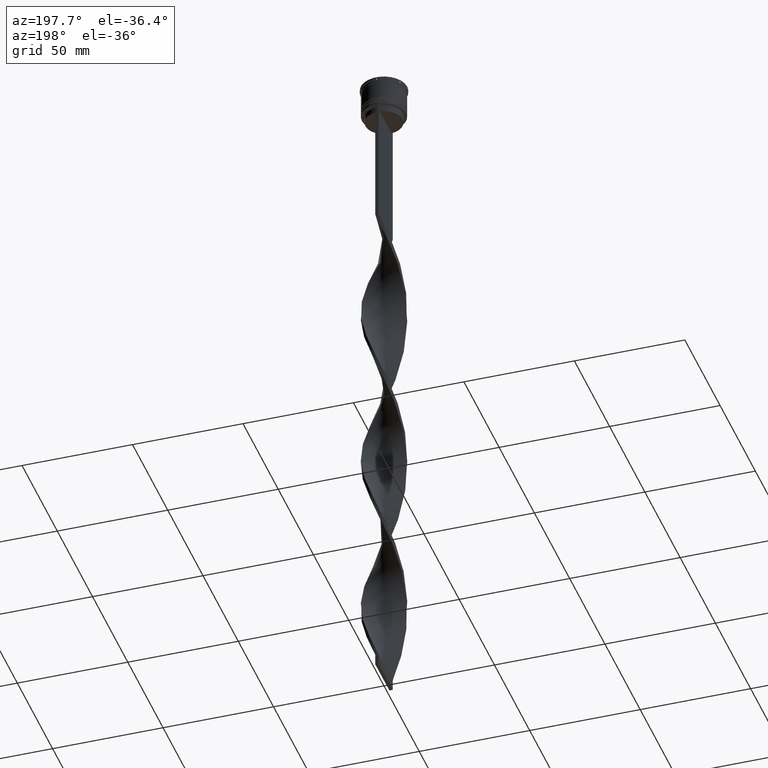
[diagram: clean part render]
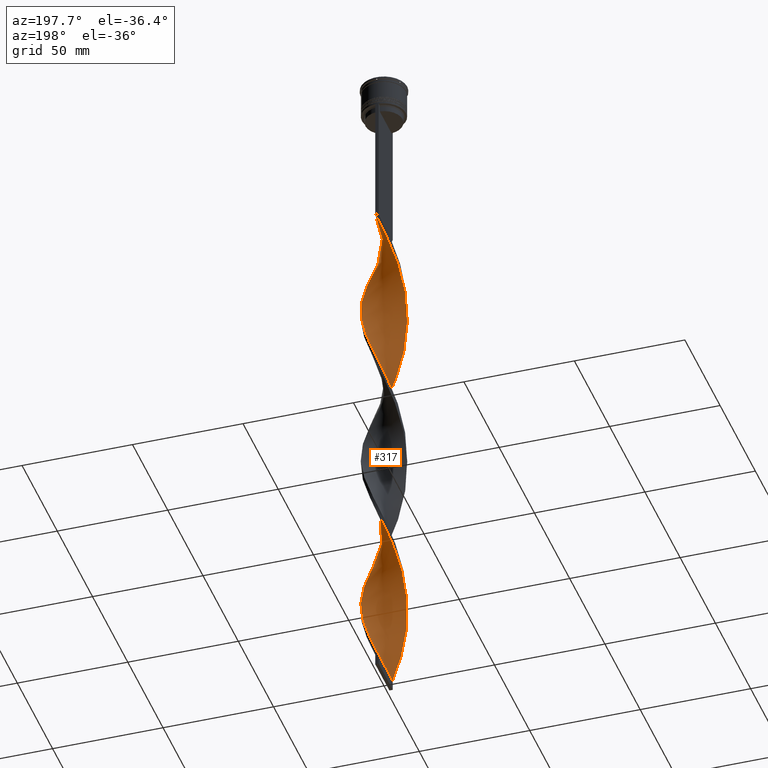
[diagram: same view with one face highlighted and labeled with its STEP entity id]
A machine part, auxiliary view. The second image highlights one B-rep face of the part: STEP entity #317.
In plain terms, the highlighted face is a freeform B-spline surface patch.
Its self-contained STEP definition (entity closure, byte-faithful):
#2 = CARTESIAN_POINT ( 'NONE',  ( -7.086630674828937160, -7.138980714781979486, -291.3000000000000682 ) ) ;
#17 = CARTESIAN_POINT ( 'NONE',  ( 9.940973719881544213, 1.537017068246184337, -114.3000000000000398 ) ) ;
#41 = CARTESIAN_POINT ( 'NONE',  ( 8.569572367079022257, 5.208159890536745884, -124.1333333333333400 ) ) ;
#55 = EDGE_CURVE ( 'NONE', #3794, #1685, #1115, .T. ) ;
#62 = CARTESIAN_POINT ( 'NONE',  ( -9.999999999999998224, 0.7500000000000007772, -269.6666666666666856 ) ) ;
#74 = CARTESIAN_POINT ( 'NONE',  ( 9.555263588120860518, -3.143615391390494285, -102.5000000000000142 ) ) ;
#83 = CARTESIAN_POINT ( 'NONE',  ( -0.03701706824619165753, -10.05902628011847000, -228.3666666666666458 ) ) ;
#97 = CARTESIAN_POINT ( 'NONE',  ( -10.00000000000000533, -0.7499999999999983347, -191.0000000000000000 ) ) ;
#113 = CARTESIAN_POINT ( 'NONE',  ( -9.759557557171204323, 2.305110905848662739, -108.3999999999999915 ) ) ;
#120 = CARTESIAN_POINT ( 'NONE',  ( -3.143615391390492064, 9.555263588120853413, -82.83333333333335702 ) ) ;
#122 = CARTESIAN_POINT ( 'NONE',  ( -9.940973719881544213, -1.537017068246187668, -192.9666666666666970 ) ) ;
#132 = CARTESIAN_POINT ( 'NONE',  ( -9.999999999999998224, 0.7500000000000007772, -112.3333333333333428 ) ) ;
#140 = CARTESIAN_POINT ( 'NONE',  ( 5.942494737169154106, 8.116165120681841927, -133.9666666666666686 ) ) ;
#150 = CARTESIAN_POINT ( 'NONE',  ( -4.599684817117892344, 8.945852645255820690, -86.76666666666666572 ) ) ;
#155 = CARTESIAN_POINT ( 'NONE',  ( -9.929392229344635723, -1.610139721665724943, -118.2333333333333485 ) ) ;
#157 = CARTESIAN_POINT ( 'NONE',  ( 7.649331004530123934, 6.484615268705943514, -128.0666666666666629 ) ) ;
#161 = CARTESIAN_POINT ( 'NONE',  ( -3.803462330970839744, 9.278802417170330941, -159.5333333333333314 ) ) ;
#183 = CARTESIAN_POINT ( 'NONE',  ( -7.086630674828936272, -7.138980714781978598, -133.9666666666666686 ) ) ;
#186 = CARTESIAN_POINT ( 'NONE',  ( -0.7499999999999988898, 10.00000000000000533, -309.0000000000000000 ) ) ;
#189 = CARTESIAN_POINT ( 'NONE',  ( -7.649331004530125711, -6.484615268705942626, -206.7333333333333201 ) ) ;
#201 = CARTESIAN_POINT ( 'NONE',  ( 0.8235783949559537520, -9.994209254731549308, -155.6000000000000227 ) ) ;
#208 = CARTESIAN_POINT ( 'NONE',  ( 6.540737725975562356, -7.601397897755385991, -171.3333333333333428 ) ) ;
#210 = CARTESIAN_POINT ( 'NONE',  ( 9.278802417170330941, 3.803462330970840632, -277.5333333333333030 ) ) ;
#213 = CARTESIAN_POINT ( 'NONE',  ( 0.8235783949559573047, 9.994209254731554637, -147.7333333333333201 ) ) ;
#224 = CARTESIAN_POINT ( 'NONE',  ( 5.882599862582947203, 8.159681294278261277, -216.5666666666666629 ) ) ;
#229 = CARTESIAN_POINT ( 'NONE',  ( 8.979463439879776132, -4.533719918490545453, -181.1666666666666856 ) ) ;
#234 = CARTESIAN_POINT ( 'NONE',  ( -7.601397897755389543, 6.540737725975570349, -171.3333333333333428 ) ) ;
#244 = CARTESIAN_POINT ( 'NONE',  ( 4.599684817117890567, -8.945852645255820690, -165.4333333333333655 ) ) ;
#253 = CARTESIAN_POINT ( 'NONE',  ( 5.208159890536744996, 8.569572367079015152, -218.5333333333333314 ) ) ;
#254 = CARTESIAN_POINT ( 'NONE',  ( 6.540737725975569461, 7.601397897755389543, -289.3333333333333144 ) ) ;
#270 = CARTESIAN_POINT ( 'NONE',  ( -9.742327908732745456, -2.376877556528107949, -120.2000000000000028 ) ) ;
#275 = CARTESIAN_POINT ( 'NONE',  ( 0.03701706824618287983, -10.05902628011846112, -153.6333333333333826 ) ) ;
#280 = CARTESIAN_POINT ( 'NONE',  ( 3.143615391390495173, 9.555263588120860518, -299.1666666666666856 ) ) ;
#291 = CARTESIAN_POINT ( 'NONE',  ( -8.116165120681838374, -5.942494737169147889, -130.0333333333333314 ) ) ;
#298 = CARTESIAN_POINT ( 'NONE',  ( -3.871650104254190428, 9.250558116688338828, -242.1333333333333258 ) ) ;
#305 = CARTESIAN_POINT ( 'NONE',  ( 0.7500000000000001110, -10.00000000000000533, -73.00000000000001421 ) ) ;
#313 = CARTESIAN_POINT ( 'NONE',  ( -5.271089777143520116, 8.531008882968830420, -246.0666666666666629 ) ) ;
#317 = ADVANCED_FACE ( 'NONE', ( #3797 ), #3804, .T. ) ;
#335 = CARTESIAN_POINT ( 'NONE',  ( -6.540737725975564132, 7.601397897755385102, -250.0000000000000000 ) ) ;
#338 = CARTESIAN_POINT ( 'NONE',  ( -3.803462330970839744, -9.278802417170323835, -301.1333333333333258 ) ) ;
#348 = CARTESIAN_POINT ( 'NONE',  ( 7.086630674828940712, -7.138980714781985704, -90.70000000000001705 ) ) ;
#364 = CARTESIAN_POINT ( 'NONE',  ( 8.531008882968833973, -5.271089777143523669, -96.60000000000000853 ) ) ;
#390 = CARTESIAN_POINT ( 'NONE',  ( -9.759557557171204323, 2.305110905848662739, -265.7333333333333485 ) ) ;
#403 = CARTESIAN_POINT ( 'NONE',  ( -5.882599862582949868, 8.159681294278264829, -165.4333333333333371 ) ) ;
#412 = CARTESIAN_POINT ( 'NONE',  ( -8.159681294278266606, -5.882599862582948091, -204.7666666666666799 ) ) ;
#414 = LINE ( 'NONE', #3088, #3165 ) ;
#415 = EDGE_CURVE ( 'NONE', #1685, #491, #4250, .T. ) ;
#416 = CARTESIAN_POINT ( 'NONE',  ( -9.278802417170323835, 3.803462330970839300, -104.4666666666666828 ) ) ;
#425 = CARTESIAN_POINT ( 'NONE',  ( 8.159681294278264829, 5.882599862582951644, -126.1000000000000227 ) ) ;
#442 = CARTESIAN_POINT ( 'NONE',  ( -7.138980714781979486, 7.086630674828935383, -94.63333333333335418 ) ) ;
#444 = CARTESIAN_POINT ( 'NONE',  ( -10.05902628011847000, 0.03701706824619112324, -189.0333333333333314 ) ) ;
#465 = CARTESIAN_POINT ( 'NONE',  ( -6.484615268705941737, -7.649331004530116829, -135.9333333333333371 ) ) ;
#467 = CARTESIAN_POINT ( 'NONE',  ( -1.537017068246183671, 9.940973719881544213, -153.6333333333333826 ) ) ;
#482 = CARTESIAN_POINT ( 'NONE',  ( -3.803462330970839744, -9.278802417170323835, -143.7999999999999829 ) ) ;
#484 = CARTESIAN_POINT ( 'NONE',  ( -0.7499999999999988898, 10.00000000000000533, -151.6666666666666856 ) ) ;
#486 = CARTESIAN_POINT ( 'NONE',  ( 5.271089777143525446, 8.531008882968833973, -135.9333333333333371 ) ) ;
#491 = VERTEX_POINT ( 'NONE', #3217 ) ;
#498 = CARTESIAN_POINT ( 'NONE',  ( -0.8235783949559550843, 9.994209254731549308, -76.93333333333333712 ) ) ;
#507 = CARTESIAN_POINT ( 'NONE',  ( 1.537017068246185003, -9.940973719881544213, -232.3000000000000398 ) ) ;
#509 = CARTESIAN_POINT ( 'NONE',  ( 3.143615391390495173, 9.555263588120860518, -141.8333333333333144 ) ) ;
#512 = ORIENTED_EDGE ( 'NONE', *, *, #415, .F. ) ;
#522 = CARTESIAN_POINT ( 'NONE',  ( -1.537017068246185891, -9.940973719881535331, -149.7000000000000455 ) ) ;
#532 = CARTESIAN_POINT ( 'NONE',  ( 4.599684817117896785, 8.945852645255826019, -295.2333333333333485 ) ) ;
#536 = CARTESIAN_POINT ( 'NONE',  ( 8.116165120681840150, -5.942494737169153218, -251.9666666666666970 ) ) ;
#546 = CARTESIAN_POINT ( 'NONE',  ( 9.999999999999998224, -0.7500000000000019984, -191.0000000000000000 ) ) ;
#553 = CARTESIAN_POINT ( 'NONE',  ( 9.929392229344637499, 1.610139721665719614, -196.9000000000000057 ) ) ;
#555 = CARTESIAN_POINT ( 'NONE',  ( 7.601397897755390431, -6.540737725975569461, -250.0000000000000000 ) ) ;
#557 = CARTESIAN_POINT ( 'NONE',  ( 5.942494737169154106, 8.116165120681840150, -133.9666666666666686 ) ) ;
#568 = CARTESIAN_POINT ( 'NONE',  ( 7.649331004530116829, -6.484615268705941737, -175.2666666666666799 ) ) ;
#572 = CARTESIAN_POINT ( 'NONE',  ( 9.994209254731549308, 0.8235783949559529749, -194.9333333333333371 ) ) ;
#574 = CARTESIAN_POINT ( 'NONE',  ( 7.086630674828939824, -7.138980714781985704, -248.0333333333333599 ) ) ;
#576 = CARTESIAN_POINT ( 'NONE',  ( 5.942494737169154106, 8.116165120681840150, -291.3000000000000682 ) ) ;
#589 = CARTESIAN_POINT ( 'NONE',  ( -7.601397897755385102, -6.540737725975563244, -132.0000000000000000 ) ) ;
#596 = CARTESIAN_POINT ( 'NONE',  ( -9.999999999999998224, 0.7500000000000008882, -269.6666666666666856 ) ) ;
#598 = CARTESIAN_POINT ( 'NONE',  ( 5.942494737169154106, 8.116165120681841927, -291.3000000000000682 ) ) ;
#616 = CARTESIAN_POINT ( 'NONE',  ( -5.208159890536744996, -8.569572367079015152, -139.8666666666666742 ) ) ;
#622 = CARTESIAN_POINT ( 'NONE',  ( 8.116165120681836598, 5.942494737169151442, -208.7000000000000171 ) ) ;
#638 = CARTESIAN_POINT ( 'NONE',  ( 0.7500000000000001110, -10.00000000000000533, -73.00000000000001421 ) ) ;
#642 = CARTESIAN_POINT ( 'NONE',  ( 5.271089777143518340, -8.531008882968830420, -167.4000000000000057 ) ) ;
#649 = CARTESIAN_POINT ( 'NONE',  ( 1.610139721665729162, 9.929392229344639276, -303.0999999999999659 ) ) ;
#651 = CARTESIAN_POINT ( 'NONE',  ( 3.803462330970840632, -9.278802417170329164, -80.86666666666667425 ) ) ;
#657 = CARTESIAN_POINT ( 'NONE',  ( 9.742327908732750785, -2.376877556528111057, -104.4666666666666828 ) ) ;
#670 = CARTESIAN_POINT ( 'NONE',  ( 9.940973719881544213, 1.537017068246184337, -271.6333333333332689 ) ) ;
#681 = CARTESIAN_POINT ( 'NONE',  ( -9.940973719881535331, 1.537017068246185003, -267.6999999999999318 ) ) ;
#696 = CARTESIAN_POINT ( 'NONE',  ( -4.533719918490541012, -8.979463439879779685, -299.1666666666666856 ) ) ;
#713 = CARTESIAN_POINT ( 'NONE',  ( -9.555263588120853413, -3.143615391390491620, -279.4999999999999432 ) ) ;
#740 = CARTESIAN_POINT ( 'NONE',  ( 2.376877556528111501, 9.742327908732750785, -143.7999999999999829 ) ) ;
#758 = CARTESIAN_POINT ( 'NONE',  ( -9.994209254731554637, 0.8235783949559579709, -187.0666666666666629 ) ) ;
#764 = CARTESIAN_POINT ( 'NONE',  ( 7.601397897755390431, -6.540737725975569461, -250.0000000000000000 ) ) ;
#766 = DIRECTION ( 'NONE',  ( 0.000000000000000000, 1.000000000000000000, 0.000000000000000000 ) ) ;
#774 = CARTESIAN_POINT ( 'NONE',  ( 9.940973719881544213, 1.537017068246184337, -114.3000000000000256 ) ) ;
#791 = CARTESIAN_POINT ( 'NONE',  ( -8.159681294278266606, -5.882599862582947203, -204.7666666666666799 ) ) ;
#819 = CARTESIAN_POINT ( 'NONE',  ( 9.929392229344641052, -1.610139721665728274, -106.4333333333333513 ) ) ;
#839 = CARTESIAN_POINT ( 'NONE',  ( 8.116165120681841927, -5.942494737169153218, -251.9666666666666686 ) ) ;
#843 = CARTESIAN_POINT ( 'NONE',  ( -7.086630674828939824, 7.138980714781986592, -169.3666666666667027 ) ) ;
#855 = CARTESIAN_POINT ( 'NONE',  ( 10.05902628011846112, 0.03701706824618689745, -192.9666666666666970 ) ) ;
#869 = CARTESIAN_POINT ( 'NONE',  ( 0.7500000000000001110, -10.00000000000000533, -230.3333333333333428 ) ) ;
#883 = CARTESIAN_POINT ( 'NONE',  ( 2.376877556528107061, -9.742327908732745456, -159.5333333333333314 ) ) ;
#891 = CARTESIAN_POINT ( 'NONE',  ( 3.073204743451137588, 9.578141394460871538, -224.4333333333333371 ) ) ;
#894 = CARTESIAN_POINT ( 'NONE',  ( 9.994209254731556413, -0.8235783949559567496, -265.7333333333333485 ) ) ;
#897 = CARTESIAN_POINT ( 'NONE',  ( 0.7500000000000002220, 9.999999999999998224, -73.00000000000001421 ) ) ;
#898 = CARTESIAN_POINT ( 'NONE',  ( -8.945852645255827795, 4.599684817117893232, -177.2333333333333485 ) ) ;
#907 = CARTESIAN_POINT ( 'NONE',  ( -1.610139721665726054, 9.929392229344633947, -236.2333333333333769 ) ) ;
#913 = CARTESIAN_POINT ( 'NONE',  ( 1.610139721665724499, -9.929392229344635723, -157.5666666666666913 ) ) ;
#917 = CARTESIAN_POINT ( 'NONE',  ( 7.649331004530123934, 6.484615268705943514, -285.3999999999999773 ) ) ;
#928 = CARTESIAN_POINT ( 'NONE',  ( 6.484615268705942626, 7.649331004530116829, -214.5999999999999943 ) ) ;
#932 = CARTESIAN_POINT ( 'NONE',  ( -9.278802417170323835, 3.803462330970839744, -261.7999999999999545 ) ) ;
#934 = CARTESIAN_POINT ( 'NONE',  ( 10.05902628011846822, -0.03701706824618537089, -267.6999999999999318 ) ) ;
#952 = CARTESIAN_POINT ( 'NONE',  ( 9.555263588120851637, 3.143615391390493397, -200.8333333333333428 ) ) ;
#960 = CARTESIAN_POINT ( 'NONE',  ( -9.940973719881535331, 1.537017068246185003, -267.6999999999999318 ) ) ;
#968 = CARTESIAN_POINT ( 'NONE',  ( 4.599684817117896785, 8.945852645255826019, -295.2333333333332916 ) ) ;
#977 = CARTESIAN_POINT ( 'NONE',  ( -5.882599862582949868, -8.159681294278259500, -295.2333333333332916 ) ) ;
#981 = CARTESIAN_POINT ( 'NONE',  ( 5.942494737169147889, -8.116165120681841927, -169.3666666666667027 ) ) ;
#993 = CARTESIAN_POINT ( 'NONE',  ( 9.250558116688344157, -3.871650104254194869, -100.5333333333333314 ) ) ;
#1013 = CARTESIAN_POINT ( 'NONE',  ( 2.305110905848663183, -9.759557557171209652, -76.93333333333333712 ) ) ;
#1036 = CARTESIAN_POINT ( 'NONE',  ( -8.979463439879779685, 4.533719918490541012, -259.8333333333334281 ) ) ;
#1054 = CARTESIAN_POINT ( 'NONE',  ( 7.138980714781985704, 7.086630674828939824, -130.0333333333333314 ) ) ;
#1059 = CARTESIAN_POINT ( 'NONE',  ( -6.484615268705941737, -7.649331004530116829, -293.2666666666666515 ) ) ;
#1073 = CARTESIAN_POINT ( 'NONE',  ( -3.871650104254195757, -9.250558116688344157, -218.5333333333333314 ) ) ;
#1078 = CARTESIAN_POINT ( 'NONE',  ( -4.533719918490541012, -8.979463439879777908, -299.1666666666666856 ) ) ;
#1088 = CARTESIAN_POINT ( 'NONE',  ( -8.945852645255827795, 4.599684817117893232, -177.2333333333333485 ) ) ;
#1101 = CARTESIAN_POINT ( 'NONE',  ( -9.278802417170330941, -3.803462330970838856, -198.8666666666666742 ) ) ;
#1102 = ORIENTED_EDGE ( 'NONE', *, *, #55, .F. ) ;
#1105 = CARTESIAN_POINT ( 'NONE',  ( -1.610139721665726054, 9.929392229344633947, -78.90000000000003411 ) ) ;
#1114 = CARTESIAN_POINT ( 'NONE',  ( 10.00000000000000533, 0.7499999999999994449, -112.3333333333333428 ) ) ;
#1115 =( BOUNDED_CURVE ( )  B_SPLINE_CURVE ( 2, ( #2103, #3153, #3178, #2788, #1195, #120, #3407, #2512, #2125, #4155, #3433, #442, #1430, #2491, #3801, #4108, #2751, #3783, #4069, #1780, #2837, #2164, #3097, #155, #1456, #2771, #4087, #1150, #1130, #3761, #3471, #183, #465, #1803, #2145, #3454, #482, #1820, #3131, #3823, #1494, #275, #3520, #913, #4175, #2948, #3942, #1281, #642, #981, #208, #1305, #2300, #3198, #3848, #229, #3540, #2598, #2235, #3607, #1217, #1975, #572, #553, #2560, #1610, #4219, #1544, #3591, #622, #2281, #2859, #2534, #1911, #253, #1955, #2254, #891, #1564, #3261, #2215, #3220, #2926, #1630, #1588, #1892, #298, #2907, #2881, #2578, #4197, #1241, #1261, #2626, #3875, #3895, #932, #3562, #4261, #960, #596, #1936, #3242, #4239, #3918, #3302, #2317, #2395, #2678, #4004, #4020, #3689, #1059, #3005, #3668, #1078, #338, #2037, #3711, #4037, #1653 ),
 .UNSPECIFIED., .F., .T. ) 
 B_SPLINE_CURVE_WITH_KNOTS ( ( 3, 2, 2, 2, 2, 2, 2, 2, 2, 2, 2, 2, 2, 2, 2, 2, 2, 2, 2, 2, 2, 2, 2, 2, 2, 2, 2, 2, 2, 2, 2, 2, 2, 2, 2, 2, 2, 2, 2, 2, 2, 2, 2, 2, 2, 2, 2, 2, 2, 2, 2, 2, 2, 2, 2, 2, 2, 2, 2, 2, 3 ),
 ( 0.000000000000000000, 0.01250000000000000243, 0.02500000000000000486, 0.03749999999999999861, 0.05000000000000000971, 0.06250000000000000000, 0.07499999999999999722, 0.08749999999999998057, 0.1000000000000000194, 0.1125000000000000028, 0.1250000000000000000, 0.1375000000000000111, 0.1499999999999999944, 0.1625000000000000056, 0.1749999999999999611, 0.1875000000000000000, 0.2000000000000000389, 0.2124999999999999944, 0.2250000000000000056, 0.2374999999999999611, 0.2500000000000000000, 0.2625000000000000111, 0.2750000000000000222, 0.2874999999999999778, 0.2999999999999999889, 0.3125000000000000000, 0.3250000000000000111, 0.3375000000000000777, 0.3499999999999999223, 0.3624999999999999889, 0.3750000000000000000, 0.3875000000000000111, 0.4000000000000000777, 0.4124999999999999223, 0.4249999999999999889, 0.4375000000000000000, 0.4500000000000000111, 0.4625000000000000777, 0.4749999999999999223, 0.4874999999999999889, 0.5000000000000000000, 0.5124999999999999556, 0.5250000000000000222, 0.5374999999999999778, 0.5500000000000000444, 0.5625000000000000000, 0.5749999999999999556, 0.5875000000000000222, 0.5999999999999999778, 0.6125000000000000444, 0.6250000000000000000, 0.6374999999999999556, 0.6500000000000000222, 0.6624999999999999778, 0.6750000000000001554, 0.6875000000000000000, 0.6999999999999998446, 0.7125000000000000222, 0.7249999999999999778, 0.7375000000000001554, 0.7500000000000000000 ),
 .UNSPECIFIED. ) 
 CURVE ( )  GEOMETRIC_REPRESENTATION_ITEM ( )  RATIONAL_B_SPLINE_CURVE ( ( 1.000000000000000000, 0.9969173337331279638, 1.000000000000000000, 0.9969173337331279638, 1.000000000000000000, 0.9969173337331279638, 1.000000000000000000, 0.9969173337331279638, 1.000000000000000000, 0.9969173337331279638, 1.000000000000000000, 0.9969173337331279638, 1.000000000000000000, 0.9969173337331279638, 1.000000000000000000, 0.9969173337331279638, 1.000000000000000000, 0.9969173337331279638, 1.000000000000000000, 0.9969173337331279638, 1.000000000000000000, 0.9969173337331279638, 1.000000000000000000, 0.9969173337331279638, 1.000000000000000000, 0.9969173337331279638, 1.000000000000000000, 0.9969173337331279638, 1.000000000000000000, 0.9969173337331279638, 1.000000000000000000, 0.9969173337331279638, 1.000000000000000000, 0.9969173337331279638, 1.000000000000000000, 0.9969173337331279638, 1.000000000000000000, 0.9969173337331279638, 1.000000000000000000, 0.9969173337331279638, 1.000000000000000000, 0.9969173337331279638, 1.000000000000000000, 0.9969173337331279638, 1.000000000000000000, 0.9969173337331279638, 1.000000000000000000, 0.9969173337331279638, 1.000000000000000000, 0.9969173337331279638, 1.000000000000000000, 0.9969173337331279638, 1.000000000000000000, 0.9969173337331279638, 1.000000000000000000, 0.9969173337331279638, 1.000000000000000000, 0.9969173337331279638, 1.000000000000000000, 0.9969173337331279638, 1.000000000000000000, 0.9969173337331279638, 1.000000000000000000, 0.9969173337331279638, 1.000000000000000000, 0.9969173337331279638, 1.000000000000000000, 0.9969173337331279638, 1.000000000000000000, 0.9969173337331279638, 1.000000000000000000, 0.9969173337331279638, 1.000000000000000000, 0.9969173337331279638, 1.000000000000000000, 0.9969173337331279638, 1.000000000000000000, 0.9969173337331279638, 1.000000000000000000, 0.9969173337331279638, 1.000000000000000000, 0.9969173337331279638, 1.000000000000000000, 0.9969173337331279638, 1.000000000000000000, 0.9969173337331279638, 1.000000000000000000, 0.9969173337331279638, 1.000000000000000000, 0.9969173337331279638, 1.000000000000000000, 0.9969173337331279638, 1.000000000000000000, 0.9969173337331279638, 1.000000000000000000, 0.9969173337331279638, 1.000000000000000000, 0.9969173337331279638, 1.000000000000000000, 0.9969173337331279638, 1.000000000000000000, 0.9969173337331279638, 1.000000000000000000, 0.9969173337331279638, 1.000000000000000000, 0.9969173337331279638, 1.000000000000000000, 0.9969173337331279638, 1.000000000000000000, 0.9969173337331279638, 1.000000000000000000, 0.9969173337331279638, 1.000000000000000000, 0.9969173337331279638, 1.000000000000000000, 0.9969173337331279638, 1.000000000000000000, 0.9969173337331279638, 1.000000000000000000, 0.9969173337331279638, 1.000000000000000000 ) ) 
 REPRESENTATION_ITEM ( '' )  );
#1130 = CARTESIAN_POINT ( 'NONE',  ( -8.531008882968830420, -5.271089777143518340, -128.0666666666666629 ) ) ;
#1132 = CARTESIAN_POINT ( 'NONE',  ( -6.484615268705943514, 7.649331004530123934, -167.4000000000000057 ) ) ;
#1143 = CARTESIAN_POINT ( 'NONE',  ( -10.05902628011846112, -0.03701706824618363617, -114.3000000000000398 ) ) ;
#1150 = CARTESIAN_POINT ( 'NONE',  ( -8.945852645255822466, -4.599684817117892344, -126.1000000000000227 ) ) ;
#1152 = CARTESIAN_POINT ( 'NONE',  ( 5.208159890536745884, -8.569572367079022257, -84.80000000000001137 ) ) ;
#1175 = CARTESIAN_POINT ( 'NONE',  ( 4.599684817117896785, 8.945852645255826019, -137.9000000000000625 ) ) ;
#1177 = CARTESIAN_POINT ( 'NONE',  ( -8.531008882968833973, 5.271089777143525446, -175.2666666666666799 ) ) ;
#1195 = CARTESIAN_POINT ( 'NONE',  ( -2.376877556528107949, 9.742327908732745456, -80.86666666666667425 ) ) ;
#1197 = CARTESIAN_POINT ( 'NONE',  ( -1.610139721665725610, -9.929392229344642828, -224.4333333333333371 ) ) ;
#1200 = CARTESIAN_POINT ( 'NONE',  ( -2.305110905848661851, 9.759557557171209652, -155.6000000000000227 ) ) ;
#1209 = CARTESIAN_POINT ( 'NONE',  ( -3.073204743451141141, -9.578141394460869762, -145.7666666666666515 ) ) ;
#1217 = CARTESIAN_POINT ( 'NONE',  ( 9.999999999999998224, -0.7500000000000021094, -191.0000000000000000 ) ) ;
#1219 = CARTESIAN_POINT ( 'NONE',  ( 7.138980714781985704, 7.086630674828938936, -287.3666666666667311 ) ) ;
#1221 = CARTESIAN_POINT ( 'NONE',  ( -5.271089777143526334, -8.531008882968833973, -214.5999999999999943 ) ) ;
#1234 = CARTESIAN_POINT ( 'NONE',  ( 0.7500000000000001110, 9.999999999999998224, -230.3333333333333428 ) ) ;
#1241 = CARTESIAN_POINT ( 'NONE',  ( -7.138980714781979486, 7.086630674828935383, -251.9666666666666686 ) ) ;
#1244 = CARTESIAN_POINT ( 'NONE',  ( -4.599684817117894120, -8.945852645255826019, -216.5666666666666629 ) ) ;
#1246 = CARTESIAN_POINT ( 'NONE',  ( 8.979463439879786790, 4.533719918490541900, -279.4999999999999432 ) ) ;
#1256 = CARTESIAN_POINT ( 'NONE',  ( 0.03701706824618297698, -10.05902628011846112, -153.6333333333333826 ) ) ;
#1261 = CARTESIAN_POINT ( 'NONE',  ( -7.649331004530118605, 6.484615268705940849, -253.9333333333333371 ) ) ;
#1263 = CARTESIAN_POINT ( 'NONE',  ( 8.945852645255826019, -4.599684817117896785, -255.9000000000000625 ) ) ;
#1276 = CARTESIAN_POINT ( 'NONE',  ( -0.7500000000000013323, -9.999999999999998224, -151.6666666666666856 ) ) ;
#1281 = CARTESIAN_POINT ( 'NONE',  ( 4.599684817117890567, -8.945852645255822466, -165.4333333333333371 ) ) ;
#1283 = CARTESIAN_POINT ( 'NONE',  ( 9.555263588120860518, -3.143615391390494285, -259.8333333333334281 ) ) ;
#1286 = CARTESIAN_POINT ( 'NONE',  ( 0.8235783949559573047, 9.994209254731554637, -305.0666666666666629 ) ) ;
#1298 = CARTESIAN_POINT ( 'NONE',  ( 8.569572367079015152, -5.208159890536744996, -179.1999999999999886 ) ) ;
#1305 = CARTESIAN_POINT ( 'NONE',  ( 7.138980714781975934, -7.086630674828939824, -173.3000000000000114 ) ) ;
#1313 = CARTESIAN_POINT ( 'NONE',  ( 9.555263588120860518, -3.143615391390494285, -259.8333333333334281 ) ) ;
#1322 = CARTESIAN_POINT ( 'NONE',  ( 8.116165120681840150, -5.942494737169153218, -94.63333333333335418 ) ) ;
#1334 = CARTESIAN_POINT ( 'NONE',  ( 2.305110905848663183, -9.759557557171209652, -76.93333333333333712 ) ) ;
#1340 = CARTESIAN_POINT ( 'NONE',  ( -9.578141394460869762, 3.073204743451140697, -263.7666666666667652 ) ) ;
#1355 = CARTESIAN_POINT ( 'NONE',  ( 9.759557557171209652, 2.305110905848662739, -116.2666666666666657 ) ) ;
#1379 = CARTESIAN_POINT ( 'NONE',  ( 8.159681294278264829, 5.882599862582952532, -126.1000000000000369 ) ) ;
#1398 = CARTESIAN_POINT ( 'NONE',  ( -9.929392229344635723, -1.610139721665725387, -275.5666666666666060 ) ) ;
#1409 = CARTESIAN_POINT ( 'NONE',  ( -9.742327908732750785, 2.376877556528111946, -183.1333333333333258 ) ) ;
#1419 = CARTESIAN_POINT ( 'NONE',  ( 2.305110905848663183, -9.759557557171209652, -234.2666666666666515 ) ) ;
#1430 = CARTESIAN_POINT ( 'NONE',  ( -7.649331004530118605, 6.484615268705940849, -96.60000000000000853 ) ) ;
#1433 = CARTESIAN_POINT ( 'NONE',  ( -9.578141394460880420, -3.073204743451134924, -196.9000000000000057 ) ) ;
#1450 = CARTESIAN_POINT ( 'NONE',  ( -3.143615391390491620, 9.555263588120853413, -82.83333333333335702 ) ) ;
#1456 = CARTESIAN_POINT ( 'NONE',  ( -9.742327908732745456, -2.376877556528107505, -120.2000000000000028 ) ) ;
#1459 = CARTESIAN_POINT ( 'NONE',  ( -9.555263588120856966, 3.143615391390499614, -181.1666666666666856 ) ) ;
#1478 = CARTESIAN_POINT ( 'NONE',  ( 9.278802417170330941, 3.803462330970840632, -120.2000000000000028 ) ) ;
#1487 = CARTESIAN_POINT ( 'NONE',  ( -9.578141394460869762, 3.073204743451140697, -106.4333333333333513 ) ) ;
#1494 = CARTESIAN_POINT ( 'NONE',  ( -0.7500000000000014433, -9.999999999999998224, -151.6666666666666856 ) ) ;
#1496 = CARTESIAN_POINT ( 'NONE',  ( 9.994209254731556413, -0.8235783949559567496, -108.3999999999999915 ) ) ;
#1502 = CARTESIAN_POINT ( 'NONE',  ( 8.531008882968833973, -5.271089777143523669, -253.9333333333333371 ) ) ;
#1516 = CARTESIAN_POINT ( 'NONE',  ( -2.376877556528108393, 9.742327908732745456, -80.86666666666667425 ) ) ;
#1526 = CARTESIAN_POINT ( 'NONE',  ( 4.533719918490542788, -8.979463439879786790, -240.1666666666667140 ) ) ;
#1538 = CARTESIAN_POINT ( 'NONE',  ( 8.116165120681836598, 5.942494737169151442, -208.7000000000000171 ) ) ;
#1544 = CARTESIAN_POINT ( 'NONE',  ( 8.945852645255824243, 4.599684817117886126, -204.7666666666666799 ) ) ;
#1546 = CARTESIAN_POINT ( 'NONE',  ( 5.208159890536745884, -8.569572367079022257, -242.1333333333333258 ) ) ;
#1548 = CARTESIAN_POINT ( 'NONE',  ( -0.7499999999999988898, 10.00000000000000533, -151.6666666666666856 ) ) ;
#1558 = CARTESIAN_POINT ( 'NONE',  ( 3.073204743451137588, 9.578141394460871538, -224.4333333333333655 ) ) ;
#1564 = CARTESIAN_POINT ( 'NONE',  ( 2.305110905848664071, 9.759557557171202546, -226.3999999999999773 ) ) ;
#1569 = CARTESIAN_POINT ( 'NONE',  ( 9.278802417170330941, 3.803462330970840632, -277.5333333333333030 ) ) ;
#1582 = CARTESIAN_POINT ( 'NONE',  ( 5.271089777143518340, -8.531008882968828644, -167.4000000000000057 ) ) ;
#1588 = CARTESIAN_POINT ( 'NONE',  ( -2.376877556528107949, 9.742327908732745456, -238.1999999999999886 ) ) ;
#1592 = CARTESIAN_POINT ( 'NONE',  ( -6.540737725975570349, -7.601397897755387767, -210.6666666666666572 ) ) ;
#1595 = CARTESIAN_POINT ( 'NONE',  ( 9.994209254731556413, -0.8235783949559567496, -265.7333333333333485 ) ) ;
#1606 = CARTESIAN_POINT ( 'NONE',  ( 5.942494737169147889, -8.116165120681840150, -169.3666666666667027 ) ) ;
#1610 = CARTESIAN_POINT ( 'NONE',  ( 9.555263588120851637, 3.143615391390493397, -200.8333333333333428 ) ) ;
#1613 = CARTESIAN_POINT ( 'NONE',  ( 4.533719918490542788, -8.979463439879785014, -240.1666666666666856 ) ) ;
#1625 = CARTESIAN_POINT ( 'NONE',  ( 9.759557557171202546, -2.305110905848663627, -187.0666666666666629 ) ) ;
#1630 = CARTESIAN_POINT ( 'NONE',  ( -1.610139721665725832, 9.929392229344633947, -236.2333333333333485 ) ) ;
#1637 = CARTESIAN_POINT ( 'NONE',  ( 3.073204743451140697, -9.578141394460876867, -78.90000000000001990 ) ) ;
#1647 = CARTESIAN_POINT ( 'NONE',  ( -8.945852645255820690, -4.599684817117892344, -283.4333333333333940 ) ) ;
#1653 = CARTESIAN_POINT ( 'NONE',  ( -0.7500000000000014433, -9.999999999999998224, -309.0000000000000000 ) ) ;
#1669 = CARTESIAN_POINT ( 'NONE',  ( -7.649331004530118605, 6.484615268705940849, -253.9333333333333371 ) ) ;
#1684 = CARTESIAN_POINT ( 'NONE',  ( 8.945852645255826019, -4.599684817117896785, -98.56666666666669130 ) ) ;
#1685 = VERTEX_POINT ( 'NONE', #1804 ) ;
#1704 = CARTESIAN_POINT ( 'NONE',  ( 9.278802417170330941, 3.803462330970840632, -120.2000000000000028 ) ) ;
#1732 = CARTESIAN_POINT ( 'NONE',  ( -3.073204743451141141, -9.578141394460869762, -303.0999999999999659 ) ) ;
#1742 = CARTESIAN_POINT ( 'NONE',  ( 0.03701706824618613417, 10.05902628011846822, -149.7000000000000171 ) ) ;
#1749 = CARTESIAN_POINT ( 'NONE',  ( -4.599684817117894120, -8.945852645255826019, -216.5666666666666629 ) ) ;
#1760 = CARTESIAN_POINT ( 'NONE',  ( -2.305110905848661851, 9.759557557171209652, -155.6000000000000227 ) ) ;
#1772 = CARTESIAN_POINT ( 'NONE',  ( -3.871650104254190428, 9.250558116688338828, -84.80000000000001137 ) ) ;
#1780 = CARTESIAN_POINT ( 'NONE',  ( -9.940973719881535331, 1.537017068246185003, -110.3666666666666742 ) ) ;
#1784 = CARTESIAN_POINT ( 'NONE',  ( -9.250558116688344157, 3.871650104254195757, -179.1999999999999886 ) ) ;
#1803 = CARTESIAN_POINT ( 'NONE',  ( -5.882599862582948980, -8.159681294278255947, -137.9000000000000625 ) ) ;
#1804 = CARTESIAN_POINT ( 'NONE',  ( -0.7500000000000014433, -9.999999999999998224, -309.0000000000000000 ) ) ;
#1805 = CARTESIAN_POINT ( 'NONE',  ( 6.540737725975569461, 7.601397897755389543, -132.0000000000000000 ) ) ;
#1820 = CARTESIAN_POINT ( 'NONE',  ( -3.073204743451140697, -9.578141394460869762, -145.7666666666666515 ) ) ;
#1822 = CARTESIAN_POINT ( 'NONE',  ( 3.871650104254194869, 9.250558116688344157, -139.8666666666666742 ) ) ;
#1824 = CARTESIAN_POINT ( 'NONE',  ( -1.537017068246183671, 9.940973719881544213, -153.6333333333333826 ) ) ;
#1845 = CARTESIAN_POINT ( 'NONE',  ( 8.979463439879785014, 4.533719918490541900, -279.4999999999999432 ) ) ;
#1851 = CARTESIAN_POINT ( 'NONE',  ( -6.540737725975570349, -7.601397897755387767, -210.6666666666666572 ) ) ;
#1864 = CARTESIAN_POINT ( 'NONE',  ( -2.305110905848663183, -9.759557557171202546, -147.7333333333333201 ) ) ;
#1874 = CARTESIAN_POINT ( 'NONE',  ( -5.271089777143526334, -8.531008882968833973, -214.5999999999999943 ) ) ;
#1876 = CARTESIAN_POINT ( 'NONE',  ( -9.994209254731554637, 0.8235783949559579709, -187.0666666666666629 ) ) ;
#1887 = CARTESIAN_POINT ( 'NONE',  ( -9.929392229344635723, -1.610139721665725387, -118.2333333333333343 ) ) ;
#1892 = CARTESIAN_POINT ( 'NONE',  ( -3.143615391390492064, 9.555263588120853413, -240.1666666666666856 ) ) ;
#1896 = CARTESIAN_POINT ( 'NONE',  ( -6.484615268705943514, 7.649331004530123934, -167.4000000000000057 ) ) ;
#1906 = CARTESIAN_POINT ( 'NONE',  ( -4.533719918490541012, -8.979463439879779685, -141.8333333333333144 ) ) ;
#1911 = CARTESIAN_POINT ( 'NONE',  ( 5.882599862582947203, 8.159681294278259500, -216.5666666666666629 ) ) ;
#1913 = CARTESIAN_POINT ( 'NONE',  ( 3.073204743451140697, -9.578141394460876867, -236.2333333333333485 ) ) ;
#1917 = CARTESIAN_POINT ( 'NONE',  ( 10.00000000000000533, 0.7499999999999994449, -269.6666666666666856 ) ) ;
#1930 = CARTESIAN_POINT ( 'NONE',  ( 5.208159890536744996, 8.569572367079015152, -218.5333333333333314 ) ) ;
#1936 = CARTESIAN_POINT ( 'NONE',  ( -10.05902628011846112, -0.03701706824618352515, -271.6333333333332689 ) ) ;
#1939 = CARTESIAN_POINT ( 'NONE',  ( 5.271089777143525446, 8.531008882968833973, -293.2666666666666515 ) ) ;
#1943 = CARTESIAN_POINT ( 'NONE',  ( 9.250558116688344157, -3.871650104254194869, -257.8666666666666742 ) ) ;
#1951 = CARTESIAN_POINT ( 'NONE',  ( 8.531008882968828644, 5.271089777143517452, -206.7333333333333201 ) ) ;
#1955 = CARTESIAN_POINT ( 'NONE',  ( 4.533719918490546341, 8.979463439879776132, -220.5000000000000284 ) ) ;
#1962 = CARTESIAN_POINT ( 'NONE',  ( 8.159681294278264829, 5.882599862582952532, -283.4333333333333940 ) ) ;
#1970 = CARTESIAN_POINT ( 'NONE',  ( 5.882599862582952532, -8.159681294278264829, -86.76666666666666572 ) ) ;
#1975 = CARTESIAN_POINT ( 'NONE',  ( 10.05902628011846112, 0.03701706824618678643, -192.9666666666666970 ) ) ;
#1981 = CARTESIAN_POINT ( 'NONE',  ( 8.569572367079022257, 5.208159890536745884, -281.4666666666666401 ) ) ;
#1994 = CARTESIAN_POINT ( 'NONE',  ( 9.929392229344639276, -1.610139721665728274, -106.4333333333333513 ) ) ;
#2008 = CARTESIAN_POINT ( 'NONE',  ( 5.271089777143525446, 8.531008882968833973, -293.2666666666666515 ) ) ;
#2016 = CARTESIAN_POINT ( 'NONE',  ( -2.305110905848663183, -9.759557557171202546, -305.0666666666666629 ) ) ;
#2032 = CARTESIAN_POINT ( 'NONE',  ( 9.994209254731556413, -0.8235783949559567496, -108.3999999999999915 ) ) ;
#2037 = CARTESIAN_POINT ( 'NONE',  ( -3.073204743451140697, -9.578141394460869762, -303.0999999999999659 ) ) ;
#2051 = CARTESIAN_POINT ( 'NONE',  ( -8.531008882968828644, -5.271089777143518340, -285.3999999999999773 ) ) ;
#2064 = CARTESIAN_POINT ( 'NONE',  ( -8.531008882968833973, 5.271089777143525446, -175.2666666666666799 ) ) ;
#2073 = CARTESIAN_POINT ( 'NONE',  ( -9.759557557171209652, -2.305110905848660963, -194.9333333333333371 ) ) ;
#2086 = CARTESIAN_POINT ( 'NONE',  ( -9.759557557171209652, -2.305110905848660963, -194.9333333333333371 ) ) ;
#2094 = CARTESIAN_POINT ( 'NONE',  ( 5.882599862582952532, -8.159681294278264829, -244.0999999999999659 ) ) ;
#2098 = CARTESIAN_POINT ( 'NONE',  ( 0.7500000000000001110, 9.999999999999998224, -73.00000000000001421 ) ) ;
#2103 = CARTESIAN_POINT ( 'NONE',  ( 0.7500000000000002220, 9.999999999999998224, -73.00000000000001421 ) ) ;
#2106 = CARTESIAN_POINT ( 'NONE',  ( 8.531008882968833973, -5.271089777143523669, -96.60000000000000853 ) ) ;
#2117 = CARTESIAN_POINT ( 'NONE',  ( -0.03701706824618429537, 10.05902628011846112, -74.96666666666668277 ) ) ;
#2125 = CARTESIAN_POINT ( 'NONE',  ( -5.271089777143520116, 8.531008882968830420, -88.73333333333334849 ) ) ;
#2128 = CARTESIAN_POINT ( 'NONE',  ( -7.649331004530125711, -6.484615268705942626, -206.7333333333333201 ) ) ;
#2141 = CARTESIAN_POINT ( 'NONE',  ( -9.994209254731549308, -0.8235783949559544181, -116.2666666666666657 ) ) ;
#2145 = CARTESIAN_POINT ( 'NONE',  ( -5.208159890536744996, -8.569572367079015152, -139.8666666666666742 ) ) ;
#2147 = CARTESIAN_POINT ( 'NONE',  ( 10.05902628011846822, -0.03701706824618537089, -110.3666666666666742 ) ) ;
#2164 = CARTESIAN_POINT ( 'NONE',  ( -10.05902628011846112, -0.03701706824618352515, -114.3000000000000256 ) ) ;
#2166 = CARTESIAN_POINT ( 'NONE',  ( 1.610139721665729162, 9.929392229344641052, -303.0999999999999659 ) ) ;
#2169 = CARTESIAN_POINT ( 'NONE',  ( -9.929392229344641052, 1.610139721665725387, -185.0999999999999659 ) ) ;
#2181 = CARTESIAN_POINT ( 'NONE',  ( -6.484615268705941737, -7.649331004530116829, -135.9333333333333371 ) ) ;
#2197 = CARTESIAN_POINT ( 'NONE',  ( -5.942494737169157659, -8.116165120681838374, -212.6333333333333826 ) ) ;
#2209 = CARTESIAN_POINT ( 'NONE',  ( 8.979463439879777908, -4.533719918490545453, -181.1666666666667140 ) ) ;
#2215 = CARTESIAN_POINT ( 'NONE',  ( 0.7500000000000002220, 9.999999999999998224, -230.3333333333333428 ) ) ;
#2217 = CARTESIAN_POINT ( 'NONE',  ( 8.159681294278264829, 5.882599862582951644, -283.4333333333333940 ) ) ;
#2219 = CARTESIAN_POINT ( 'NONE',  ( 0.7500000000000001110, -10.00000000000000533, -73.00000000000001421 ) ) ;
#2220 = CARTESIAN_POINT ( 'NONE',  ( 0.03701706824618614111, 10.05902628011846822, -149.7000000000000455 ) ) ;
#2230 = CARTESIAN_POINT ( 'NONE',  ( -3.803462330970839744, -9.278802417170323835, -143.7999999999999829 ) ) ;
#2235 = CARTESIAN_POINT ( 'NONE',  ( 9.759557557171202546, -2.305110905848663627, -187.0666666666666629 ) ) ;
#2237 = CARTESIAN_POINT ( 'NONE',  ( -3.143615391390500502, -9.555263588120856966, -220.5000000000000284 ) ) ;
#2250 = CARTESIAN_POINT ( 'NONE',  ( -9.555263588120853413, -3.143615391390491620, -122.1666666666666998 ) ) ;
#2254 = CARTESIAN_POINT ( 'NONE',  ( 3.803462330970841521, 9.278802417170323835, -222.4666666666666686 ) ) ;
#2256 = CARTESIAN_POINT ( 'NONE',  ( 9.759557557171209652, 2.305110905848662739, -273.5999999999999659 ) ) ;
#2276 = CARTESIAN_POINT ( 'NONE',  ( 9.250558116688338828, 3.871650104254189539, -202.8000000000000114 ) ) ;
#2281 = CARTESIAN_POINT ( 'NONE',  ( 7.601397897755385991, 6.540737725975562356, -210.6666666666666572 ) ) ;
#2288 = CARTESIAN_POINT ( 'NONE',  ( 3.871650104254194869, 9.250558116688344157, -297.2000000000000455 ) ) ;
#2297 = CARTESIAN_POINT ( 'NONE',  ( -1.537017068246185891, -9.940973719881535331, -307.0333333333333030 ) ) ;
#2300 = CARTESIAN_POINT ( 'NONE',  ( 7.649331004530116829, -6.484615268705941737, -175.2666666666666799 ) ) ;
#2307 = CARTESIAN_POINT ( 'NONE',  ( 3.143615391390495173, 9.555263588120860518, -299.1666666666666856 ) ) ;
#2309 = CARTESIAN_POINT ( 'NONE',  ( 1.537017068246185003, -9.940973719881544213, -74.96666666666668277 ) ) ;
#2314 = CARTESIAN_POINT ( 'NONE',  ( 9.555263588120860518, -3.143615391390494285, -102.5000000000000000 ) ) ;
#2317 = CARTESIAN_POINT ( 'NONE',  ( -9.250558116688338828, -3.871650104254190428, -281.4666666666666401 ) ) ;
#2333 = CARTESIAN_POINT ( 'NONE',  ( 3.073204743451141141, -9.578141394460876867, -78.90000000000003411 ) ) ;
#2352 = CARTESIAN_POINT ( 'NONE',  ( -5.208159890536744996, -8.569572367079015152, -297.2000000000000455 ) ) ;
#2370 = CARTESIAN_POINT ( 'NONE',  ( -7.138980714781979486, 7.086630674828936272, -251.9666666666666970 ) ) ;
#2389 = CARTESIAN_POINT ( 'NONE',  ( -8.116165120681840150, 5.942494737169157659, -173.3000000000000114 ) ) ;
#2395 = CARTESIAN_POINT ( 'NONE',  ( -8.945852645255822466, -4.599684817117892344, -283.4333333333333940 ) ) ;
#2406 = CARTESIAN_POINT ( 'NONE',  ( 1.610139721665729162, 9.929392229344641052, -145.7666666666666515 ) ) ;
#2417 = CARTESIAN_POINT ( 'NONE',  ( 3.803462330970840632, -9.278802417170329164, -238.1999999999999886 ) ) ;
#2420 = CARTESIAN_POINT ( 'NONE',  ( -5.942494737169148777, 8.116165120681838374, -90.70000000000001705 ) ) ;
#2429 = CARTESIAN_POINT ( 'NONE',  ( -9.278802417170330941, -3.803462330970838856, -198.8666666666666742 ) ) ;
#2448 = CARTESIAN_POINT ( 'NONE',  ( -8.569572367079024033, -5.208159890536744996, -202.8000000000000114 ) ) ;
#2461 = CARTESIAN_POINT ( 'NONE',  ( -6.540737725975564132, 7.601397897755385102, -92.66666666666667140 ) ) ;
#2470 = CARTESIAN_POINT ( 'NONE',  ( 5.882599862582951644, -8.159681294278264829, -86.76666666666666572 ) ) ;
#2491 = CARTESIAN_POINT ( 'NONE',  ( -8.159681294278255947, 5.882599862582948980, -98.56666666666669130 ) ) ;
#2493 = CARTESIAN_POINT ( 'NONE',  ( 7.086630674828939824, -7.138980714781985704, -90.70000000000001705 ) ) ;
#2495 = CARTESIAN_POINT ( 'NONE',  ( -2.376877556528113278, -9.742327908732750785, -222.4666666666666686 ) ) ;
#2512 = CARTESIAN_POINT ( 'NONE',  ( -4.599684817117892344, 8.945852645255822466, -86.76666666666666572 ) ) ;
#2514 = CARTESIAN_POINT ( 'NONE',  ( 2.305110905848663183, -9.759557557171209652, -234.2666666666666515 ) ) ;
#2516 = CARTESIAN_POINT ( 'NONE',  ( -9.578141394460880420, -3.073204743451134924, -196.9000000000000057 ) ) ;
#2525 = CARTESIAN_POINT ( 'NONE',  ( 4.533719918490545453, 8.979463439879777908, -220.5000000000000284 ) ) ;
#2534 = CARTESIAN_POINT ( 'NONE',  ( 6.484615268705942626, 7.649331004530116829, -214.5999999999999943 ) ) ;
#2541 = CARTESIAN_POINT ( 'NONE',  ( -10.00000000000000533, -0.7499999999999983347, -191.0000000000000000 ) ) ;
#2550 = EDGE_LOOP ( 'NONE', ( #3445, #3684, #512, #1102 ) ) ;
#2555 = CARTESIAN_POINT ( 'NONE',  ( -0.03701706824618429537, 10.05902628011846112, -232.3000000000000114 ) ) ;
#2560 = CARTESIAN_POINT ( 'NONE',  ( 9.742327908732745456, 2.376877556528106172, -198.8666666666666742 ) ) ;
#2562 = CARTESIAN_POINT ( 'NONE',  ( -3.871650104254195757, -9.250558116688344157, -218.5333333333333314 ) ) ;
#2565 = CARTESIAN_POINT ( 'NONE',  ( 9.578141394460878644, 3.073204743451140697, -275.5666666666666060 ) ) ;
#2573 = CARTESIAN_POINT ( 'NONE',  ( 8.159681294278261277, -5.882599862582945427, -177.2333333333333485 ) ) ;
#2578 = CARTESIAN_POINT ( 'NONE',  ( -5.942494737169148777, 8.116165120681838374, -248.0333333333333599 ) ) ;
#2580 = CARTESIAN_POINT ( 'NONE',  ( 9.250558116688344157, -3.871650104254194869, -257.8666666666666742 ) ) ;
#2594 = CARTESIAN_POINT ( 'NONE',  ( 6.540737725975563244, -7.601397897755385991, -171.3333333333333428 ) ) ;
#2598 = CARTESIAN_POINT ( 'NONE',  ( 9.578141394460871538, -3.073204743451137588, -185.0999999999999943 ) ) ;
#2601 = CARTESIAN_POINT ( 'NONE',  ( 7.649331004530123934, 6.484615268705943514, -285.3999999999999773 ) ) ;
#2602 = EDGE_CURVE ( 'NONE', #3831, #491, #3955, .T. ) ;
#2606 = CARTESIAN_POINT ( 'NONE',  ( -0.7499999999999997780, 3.333333333333337478, -309.0000000000000000 ) ) ;
#2620 = CARTESIAN_POINT ( 'NONE',  ( 9.578141394460871538, -3.073204743451137144, -185.0999999999999659 ) ) ;
#2626 = CARTESIAN_POINT ( 'NONE',  ( -8.159681294278255947, 5.882599862582948980, -255.9000000000000625 ) ) ;
#2632 = CARTESIAN_POINT ( 'NONE',  ( 9.742327908732750785, -2.376877556528111057, -261.7999999999999545 ) ) ;
#2638 = CARTESIAN_POINT ( 'NONE',  ( -4.599684817117892344, 8.945852645255820690, -244.0999999999999659 ) ) ;
#2654 = CARTESIAN_POINT ( 'NONE',  ( -9.742327908732745456, -2.376877556528107949, -277.5333333333333030 ) ) ;
#2671 = CARTESIAN_POINT ( 'NONE',  ( 1.537017068246185003, -9.940973719881544213, -74.96666666666668277 ) ) ;
#2678 = CARTESIAN_POINT ( 'NONE',  ( -8.531008882968830420, -5.271089777143518340, -285.3999999999999773 ) ) ;
#2698 = CARTESIAN_POINT ( 'NONE',  ( 7.649331004530123934, 6.484615268705943514, -128.0666666666666629 ) ) ;
#2717 = CARTESIAN_POINT ( 'NONE',  ( -9.250558116688344157, 3.871650104254195757, -179.1999999999999886 ) ) ;
#2729 = CARTESIAN_POINT ( 'NONE',  ( -4.533719918490541900, 8.979463439879785014, -161.5000000000000000 ) ) ;
#2738 = CARTESIAN_POINT ( 'NONE',  ( 3.073204743451141141, -9.578141394460876867, -236.2333333333333769 ) ) ;
#2751 = CARTESIAN_POINT ( 'NONE',  ( -9.278802417170323835, 3.803462330970839744, -104.4666666666666828 ) ) ;
#2755 = CARTESIAN_POINT ( 'NONE',  ( -3.073204743451139809, 9.578141394460878644, -157.5666666666666913 ) ) ;
#2765 = CARTESIAN_POINT ( 'NONE',  ( -9.940973719881535331, 1.537017068246185003, -110.3666666666666600 ) ) ;
#2771 = CARTESIAN_POINT ( 'NONE',  ( -9.555263588120853413, -3.143615391390491176, -122.1666666666666856 ) ) ;
#2773 = CARTESIAN_POINT ( 'NONE',  ( -3.803462330970839744, 9.278802417170330941, -159.5333333333333314 ) ) ;
#2788 = CARTESIAN_POINT ( 'NONE',  ( -1.610139721665725832, 9.929392229344633947, -78.90000000000001990 ) ) ;
#2790 = CARTESIAN_POINT ( 'NONE',  ( -7.086630674828938936, 7.138980714781986592, -169.3666666666667027 ) ) ;
#2815 = CARTESIAN_POINT ( 'NONE',  ( 7.138980714781985704, 7.086630674828938936, -130.0333333333333314 ) ) ;
#2819 = CARTESIAN_POINT ( 'NONE',  ( 4.599684817117896785, 8.945852645255826019, -137.9000000000000625 ) ) ;
#2837 = CARTESIAN_POINT ( 'NONE',  ( -9.999999999999998224, 0.7500000000000008882, -112.3333333333333428 ) ) ;
#2841 = CARTESIAN_POINT ( 'NONE',  ( 5.208159890536745884, -8.569572367079022257, -242.1333333333333258 ) ) ;
#2854 = CARTESIAN_POINT ( 'NONE',  ( 7.086630674828940712, 7.138980714781974157, -212.6333333333333826 ) ) ;
#2859 = CARTESIAN_POINT ( 'NONE',  ( 7.086630674828939824, 7.138980714781974157, -212.6333333333333826 ) ) ;
#2862 = CARTESIAN_POINT ( 'NONE',  ( 9.929392229344641052, -1.610139721665728274, -263.7666666666667084 ) ) ;
#2865 = CARTESIAN_POINT ( 'NONE',  ( -5.208159890536744996, 8.569572367079022257, -163.4666666666666401 ) ) ;
#2874 = CARTESIAN_POINT ( 'NONE',  ( 2.305110905848663627, 9.759557557171202546, -226.3999999999999773 ) ) ;
#2881 = CARTESIAN_POINT ( 'NONE',  ( -5.271089777143520116, 8.531008882968830420, -246.0666666666666629 ) ) ;
#2884 = CARTESIAN_POINT ( 'NONE',  ( 10.00000000000000533, 0.7499999999999994449, -269.6666666666666856 ) ) ;
#2901 = CARTESIAN_POINT ( 'NONE',  ( -3.143615391390491620, 9.555263588120853413, -240.1666666666667140 ) ) ;
#2907 = CARTESIAN_POINT ( 'NONE',  ( -4.599684817117892344, 8.945852645255822466, -244.0999999999999943 ) ) ;
#2910 = CARTESIAN_POINT ( 'NONE',  ( -0.03701706824619165753, -10.05902628011847000, -228.3666666666666742 ) ) ;
#2912 = CARTESIAN_POINT ( 'NONE',  ( 6.540737725975569461, 7.601397897755389543, -289.3333333333333144 ) ) ;
#2921 = CARTESIAN_POINT ( 'NONE',  ( 1.610139721665724943, -9.929392229344635723, -157.5666666666666629 ) ) ;
#2926 = CARTESIAN_POINT ( 'NONE',  ( -0.8235783949559549733, 9.994209254731549308, -234.2666666666666515 ) ) ;
#2930 = CARTESIAN_POINT ( 'NONE',  ( 9.742327908732750785, -2.376877556528111057, -261.7999999999999545 ) ) ;
#2943 = CARTESIAN_POINT ( 'NONE',  ( -5.882599862582949868, -8.159681294278259500, -137.9000000000000625 ) ) ;
#2948 = CARTESIAN_POINT ( 'NONE',  ( 3.143615391390490732, -9.555263588120853413, -161.5000000000000000 ) ) ;
#2965 = CARTESIAN_POINT ( 'NONE',  ( -6.484615268705941737, -7.649331004530116829, -293.2666666666666515 ) ) ;
#2977 = CARTESIAN_POINT ( 'NONE',  ( -0.7500000000000014433, -9.999999999999998224, -309.0000000000000000 ) ) ;
#2985 = CARTESIAN_POINT ( 'NONE',  ( -8.116165120681838374, -5.942494737169147889, -287.3666666666667311 ) ) ;
#3002 = CARTESIAN_POINT ( 'NONE',  ( 10.05902628011846822, -0.03701706824618536396, -110.3666666666666600 ) ) ;
#3005 = CARTESIAN_POINT ( 'NONE',  ( -5.882599862582948980, -8.159681294278255947, -295.2333333333333485 ) ) ;
#3025 = CARTESIAN_POINT ( 'NONE',  ( 8.979463439879786790, 4.533719918490541900, -122.1666666666666998 ) ) ;
#3045 = CARTESIAN_POINT ( 'NONE',  ( -10.05902628011846112, -0.03701706824618363617, -271.6333333333332689 ) ) ;
#3057 = CARTESIAN_POINT ( 'NONE',  ( 0.8235783949559573047, 9.994209254731554637, -147.7333333333333201 ) ) ;
#3065 = CARTESIAN_POINT ( 'NONE',  ( -3.143615391390500058, -9.555263588120856966, -220.5000000000000284 ) ) ;
#3077 = CARTESIAN_POINT ( 'NONE',  ( 9.578141394460878644, 3.073204743451140253, -118.2333333333333485 ) ) ;
#3088 = CARTESIAN_POINT ( 'NONE',  ( 0.7500000000000001110, -10.00000000000000533, -73.00000000000001421 ) ) ;
#3092 = CARTESIAN_POINT ( 'NONE',  ( -8.569572367079015152, 5.208159890536744108, -100.5333333333333314 ) ) ;
#3097 = CARTESIAN_POINT ( 'NONE',  ( -9.994209254731549308, -0.8235783949559543071, -116.2666666666666657 ) ) ;
#3100 = CARTESIAN_POINT ( 'NONE',  ( 3.143615391390495173, 9.555263588120860518, -141.8333333333333428 ) ) ;
#3108 = CARTESIAN_POINT ( 'NONE',  ( -8.979463439879779685, 4.533719918490541012, -102.5000000000000000 ) ) ;
#3116 = CARTESIAN_POINT ( 'NONE',  ( -7.138980714781983927, -7.086630674828942489, -208.7000000000000171 ) ) ;
#3131 = CARTESIAN_POINT ( 'NONE',  ( -2.305110905848663183, -9.759557557171202546, -147.7333333333333201 ) ) ;
#3134 = CARTESIAN_POINT ( 'NONE',  ( -7.601397897755389543, 6.540737725975570349, -171.3333333333333428 ) ) ;
#3136 = CARTESIAN_POINT ( 'NONE',  ( -5.882599862582950756, 8.159681294278264829, -165.4333333333333655 ) ) ;
#3153 = CARTESIAN_POINT ( 'NONE',  ( -0.03701706824618418434, 10.05902628011846112, -74.96666666666668277 ) ) ;
#3155 = CARTESIAN_POINT ( 'NONE',  ( 0.03701706824618613417, 10.05902628011846822, -307.0333333333333030 ) ) ;
#3160 = CARTESIAN_POINT ( 'NONE',  ( -1.610139721665725832, -9.929392229344641052, -224.4333333333333655 ) ) ;
#3165 = VECTOR ( 'NONE', #766, 1000.000000000000000 ) ;
#3173 = CARTESIAN_POINT ( 'NONE',  ( 9.742327908732745456, 2.376877556528106172, -198.8666666666666742 ) ) ;
#3178 = CARTESIAN_POINT ( 'NONE',  ( -0.8235783949559549733, 9.994209254731549308, -76.93333333333333712 ) ) ;
#3180 = CARTESIAN_POINT ( 'NONE',  ( 6.484615268705944402, -7.649331004530123934, -246.0666666666666629 ) ) ;
#3181 = CARTESIAN_POINT ( 'NONE',  ( 3.871650104254194869, 9.250558116688344157, -139.8666666666666742 ) ) ;
#3193 = CARTESIAN_POINT ( 'NONE',  ( 7.601397897755385991, 6.540737725975562356, -210.6666666666666572 ) ) ;
#3198 = CARTESIAN_POINT ( 'NONE',  ( 8.159681294278259500, -5.882599862582945427, -177.2333333333333485 ) ) ;
#3202 = CARTESIAN_POINT ( 'NONE',  ( 6.540737725975569461, 7.601397897755389543, -132.0000000000000000 ) ) ;
#3212 = CARTESIAN_POINT ( 'NONE',  ( 9.994209254731549308, 0.8235783949559530859, -194.9333333333333371 ) ) ;
#3217 = CARTESIAN_POINT ( 'NONE',  ( -0.7499999999999988898, 10.00000000000000533, -309.0000000000000000 ) ) ;
#3220 = CARTESIAN_POINT ( 'NONE',  ( -0.03701706824618418434, 10.05902628011846112, -232.3000000000000398 ) ) ;
#3222 = CARTESIAN_POINT ( 'NONE',  ( 9.578141394460878644, 3.073204743451140253, -275.5666666666666060 ) ) ;
#3226 = CARTESIAN_POINT ( 'NONE',  ( 9.759557557171209652, 2.305110905848662739, -273.5999999999999659 ) ) ;
#3238 = CARTESIAN_POINT ( 'NONE',  ( -7.086630674828937160, -7.138980714781979486, -133.9666666666666686 ) ) ;
#3242 = CARTESIAN_POINT ( 'NONE',  ( -9.994209254731549308, -0.8235783949559543071, -273.5999999999999659 ) ) ;
#3244 = CARTESIAN_POINT ( 'NONE',  ( 3.871650104254194869, 9.250558116688344157, -297.2000000000000455 ) ) ;
#3257 = CARTESIAN_POINT ( 'NONE',  ( -8.531008882968828644, -5.271089777143518340, -128.0666666666666629 ) ) ;
#3261 = CARTESIAN_POINT ( 'NONE',  ( 1.537017068246191664, 9.940973719881533555, -228.3666666666666742 ) ) ;
#3264 = EDGE_CURVE ( 'NONE', #3831, #3794, #414, .T. ) ;
#3267 = CARTESIAN_POINT ( 'NONE',  ( 0.03701706824618614111, 10.05902628011846822, -307.0333333333333030 ) ) ;
#3275 = CARTESIAN_POINT ( 'NONE',  ( -8.159681294278259500, 5.882599862582949868, -255.9000000000000909 ) ) ;
#3286 = CARTESIAN_POINT ( 'NONE',  ( 2.376877556528111501, 9.742327908732750785, -301.1333333333333258 ) ) ;
#3298 = CARTESIAN_POINT ( 'NONE',  ( 10.00000000000000533, 0.7499999999999994449, -112.3333333333333428 ) ) ;
#3302 = CARTESIAN_POINT ( 'NONE',  ( -9.555263588120853413, -3.143615391390491176, -279.4999999999999432 ) ) ;
#3317 = CARTESIAN_POINT ( 'NONE',  ( 4.533719918490542788, -8.979463439879786790, -82.83333333333335702 ) ) ;
#3332 = CARTESIAN_POINT ( 'NONE',  ( 6.484615268705944402, -7.649331004530123934, -88.73333333333334849 ) ) ;
#3356 = CARTESIAN_POINT ( 'NONE',  ( -7.601397897755385102, -6.540737725975563244, -289.3333333333333144 ) ) ;
#3373 = CARTESIAN_POINT ( 'NONE',  ( 5.271089777143525446, 8.531008882968833973, -135.9333333333333371 ) ) ;
#3380 = CARTESIAN_POINT ( 'NONE',  ( -9.742327908732750785, 2.376877556528111946, -183.1333333333333258 ) ) ;
#3383 = CARTESIAN_POINT ( 'NONE',  ( -7.649331004530118605, 6.484615268705940849, -96.60000000000000853 ) ) ;
#3391 = CARTESIAN_POINT ( 'NONE',  ( 9.742327908732750785, -2.376877556528111057, -104.4666666666666828 ) ) ;
#3399 = CARTESIAN_POINT ( 'NONE',  ( -8.979463439879785014, -4.533719918490545453, -200.8333333333333428 ) ) ;
#3407 = CARTESIAN_POINT ( 'NONE',  ( -3.871650104254190428, 9.250558116688338828, -84.80000000000001137 ) ) ;
#3410 = CARTESIAN_POINT ( 'NONE',  ( 2.376877556528111501, 9.742327908732750785, -143.7999999999999829 ) ) ;
#3426 = CARTESIAN_POINT ( 'NONE',  ( -8.159681294278259500, 5.882599862582949868, -98.56666666666669130 ) ) ;
#3433 = CARTESIAN_POINT ( 'NONE',  ( -6.540737725975564132, 7.601397897755385102, -92.66666666666667140 ) ) ;
#3437 = CARTESIAN_POINT ( 'NONE',  ( 8.979463439879785014, 4.533719918490541900, -122.1666666666666856 ) ) ;
#3445 = ORIENTED_EDGE ( 'NONE', *, *, #3264, .F. ) ;
#3454 = CARTESIAN_POINT ( 'NONE',  ( -4.533719918490541012, -8.979463439879777908, -141.8333333333333428 ) ) ;
#3456 = CARTESIAN_POINT ( 'NONE',  ( 8.569572367079022257, 5.208159890536745884, -124.1333333333333400 ) ) ;
#3471 = CARTESIAN_POINT ( 'NONE',  ( -7.601397897755385102, -6.540737725975563244, -132.0000000000000000 ) ) ;
#3473 = CARTESIAN_POINT ( 'NONE',  ( 0.8235783949559573047, 9.994209254731554637, -305.0666666666666629 ) ) ;
#3475 = CARTESIAN_POINT ( 'NONE',  ( -8.569572367079024033, -5.208159890536744996, -202.8000000000000114 ) ) ;
#3490 = CARTESIAN_POINT ( 'NONE',  ( 9.940973719881533555, -1.537017068246190554, -189.0333333333333314 ) ) ;
#3501 = CARTESIAN_POINT ( 'NONE',  ( -2.376877556528113278, -9.742327908732750785, -222.4666666666666686 ) ) ;
#3506 = CARTESIAN_POINT ( 'NONE',  ( -10.05902628011847000, 0.03701706824619112324, -189.0333333333333314 ) ) ;
#3516 = CARTESIAN_POINT ( 'NONE',  ( -8.945852645255820690, -4.599684817117892344, -126.1000000000000369 ) ) ;
#3520 = CARTESIAN_POINT ( 'NONE',  ( 0.8235783949559536410, -9.994209254731549308, -155.6000000000000227 ) ) ;
#3524 = CARTESIAN_POINT ( 'NONE',  ( -4.533719918490541900, 8.979463439879786790, -161.5000000000000000 ) ) ;
#3535 = CARTESIAN_POINT ( 'NONE',  ( -2.376877556528108393, 9.742327908732745456, -238.1999999999999886 ) ) ;
#3540 = CARTESIAN_POINT ( 'NONE',  ( 9.278802417170323835, -3.803462330970840632, -183.1333333333333258 ) ) ;
#3542 = CARTESIAN_POINT ( 'NONE',  ( 0.7500000000000001110, -10.00000000000000533, -230.3333333333333428 ) ) ;
#3555 = CARTESIAN_POINT ( 'NONE',  ( 9.929392229344635723, 1.610139721665719836, -196.9000000000000057 ) ) ;
#3562 = CARTESIAN_POINT ( 'NONE',  ( -9.578141394460869762, 3.073204743451140697, -263.7666666666667084 ) ) ;
#3564 = CARTESIAN_POINT ( 'NONE',  ( 8.569572367079022257, 5.208159890536745884, -281.4666666666666401 ) ) ;
#3570 = CARTESIAN_POINT ( 'NONE',  ( 9.929392229344639276, -1.610139721665728274, -263.7666666666667652 ) ) ;
#3585 = CARTESIAN_POINT ( 'NONE',  ( 8.945852645255822466, 4.599684817117887015, -204.7666666666666799 ) ) ;
#3591 = CARTESIAN_POINT ( 'NONE',  ( 8.531008882968828644, 5.271089777143517452, -206.7333333333333201 ) ) ;
#3596 = CARTESIAN_POINT ( 'NONE',  ( -0.7499999999999988898, 10.00000000000000533, -309.0000000000000000 ) ) ;
#3604 = CARTESIAN_POINT ( 'NONE',  ( -0.7500000000000013323, -9.999999999999998224, -309.0000000000000000 ) ) ;
#3607 = CARTESIAN_POINT ( 'NONE',  ( 9.940973719881533555, -1.537017068246190998, -189.0333333333333314 ) ) ;
#3614 = CARTESIAN_POINT ( 'NONE',  ( 7.138980714781985704, 7.086630674828939824, -287.3666666666667311 ) ) ;
#3621 = CARTESIAN_POINT ( 'NONE',  ( 7.601397897755390431, -6.540737725975569461, -92.66666666666667140 ) ) ;
#3632 = CARTESIAN_POINT ( 'NONE',  ( -0.7499999999999988898, 10.00000000000000533, -309.0000000000000000 ) ) ;
#3644 = CARTESIAN_POINT ( 'NONE',  ( 3.803462330970840632, -9.278802417170329164, -80.86666666666667425 ) ) ;
#3665 = CARTESIAN_POINT ( 'NONE',  ( -9.278802417170323835, 3.803462330970839300, -261.7999999999999545 ) ) ;
#3668 = CARTESIAN_POINT ( 'NONE',  ( -5.208159890536744996, -8.569572367079015152, -297.2000000000000455 ) ) ;
#3683 = CARTESIAN_POINT ( 'NONE',  ( -5.942494737169148777, 8.116165120681838374, -248.0333333333333314 ) ) ;
#3684 = ORIENTED_EDGE ( 'NONE', *, *, #2602, .T. ) ;
#3689 = CARTESIAN_POINT ( 'NONE',  ( -7.086630674828936272, -7.138980714781978598, -291.3000000000000682 ) ) ;
#3706 = CARTESIAN_POINT ( 'NONE',  ( -9.940973719881544213, -1.537017068246187446, -192.9666666666666970 ) ) ;
#3711 = CARTESIAN_POINT ( 'NONE',  ( -2.305110905848663183, -9.759557557171202546, -305.0666666666666629 ) ) ;
#3722 = CARTESIAN_POINT ( 'NONE',  ( -9.929392229344642828, 1.610139721665725165, -185.0999999999999943 ) ) ;
#3730 = CARTESIAN_POINT ( 'NONE',  ( 6.484615268705944402, -7.649331004530123934, -246.0666666666666629 ) ) ;
#3742 = CARTESIAN_POINT ( 'NONE',  ( -8.979463439879783238, -4.533719918490545453, -200.8333333333333428 ) ) ;
#3761 = CARTESIAN_POINT ( 'NONE',  ( -8.116165120681838374, -5.942494737169147889, -130.0333333333333314 ) ) ;
#3763 = CARTESIAN_POINT ( 'NONE',  ( -5.208159890536744996, 8.569572367079022257, -163.4666666666666401 ) ) ;
#3776 = CARTESIAN_POINT ( 'NONE',  ( -7.138980714781979486, 7.086630674828936272, -94.63333333333335418 ) ) ;
#3783 = CARTESIAN_POINT ( 'NONE',  ( -9.578141394460869762, 3.073204743451140697, -106.4333333333333513 ) ) ;
#3786 = CARTESIAN_POINT ( 'NONE',  ( 8.945852645255826019, -4.599684817117896785, -98.56666666666669130 ) ) ;
#3794 = VERTEX_POINT ( 'NONE', #897 ) ;
#3797 = FACE_OUTER_BOUND ( 'NONE', #2550, .T. ) ;
#3801 = CARTESIAN_POINT ( 'NONE',  ( -8.569572367079015152, 5.208159890536744108, -100.5333333333333314 ) ) ;
#3803 = CARTESIAN_POINT ( 'NONE',  ( 9.759557557171209652, 2.305110905848662739, -116.2666666666666657 ) ) ;
#3804 =( BOUNDED_SURFACE ( )  B_SPLINE_SURFACE ( 1, 2, ( 
 ( #2098, #2117, #498, #1105, #1516, #1450, #1772, #150, #4101, #2420, #2461, #3776, #3383, #3426, #3092, #3108, #416, #1487, #113, #2765, #132, #1143, #2141, #1887, #270, #2250, #4235, #3516, #3257, #291, #589, #3238, #2181, #2943, #616, #1906, #2230, #1209, #1864, #522, #1276, #1256, #201, #2921, #883, #4170, #4254, #244, #1582, #1606, #2594, #3911, #568, #2573, #1298, #2209, #3890, #2620, #1625, #3490, #546, #855, #3212, #3555, #3173, #952, #2276, #3585, #1951, #1538, #3193, #2854, #928, #224, #1930, #2525, #3840, #1558, #2874, #4190, #1234, #2555, #3867, #907, #3535, #2901, #4215, #2638, #313, #3683, #335, #2370, #1669, #3275, #3938, #1036, #3665, #1340, #390, #681, #62, #3045, #4017, #1398, #2654, #713, #3957, #1647, #2051, #2985, #3356, #2, #2965, #977, #2352, #696, #3977, #1732, #2016, #2297, #3604 ),
 ( #638, #2671, #1013, #2333, #3644, #3317, #4280, #1970, #3332, #348, #3621, #1322, #364, #1684, #993, #2314, #657, #1994, #2032, #3002, #3298, #17, #1355, #3999, #1704, #3025, #41, #1379, #2698, #1054, #3202, #557, #486, #2819, #3181, #509, #740, #4054, #213, #2220, #1548, #1824, #1200, #4179, #161, #3524, #2865, #3136, #1896, #843, #234, #2389, #1177, #898, #2717, #4138, #3380, #2169, #1876, #3506, #2541, #3706, #2073, #2516, #1101, #3399, #3475, #412, #189, #4034, #1851, #2197, #1221, #1749, #1073, #3065, #2495, #3160, #3854, #83, #869, #3807, #1419, #2738, #2417, #1526, #2841, #2094, #3730, #4159, #764, #536, #1502, #3828, #1943, #1313, #2632, #3570, #1595, #3925, #1917, #670, #3226, #2565, #1569, #1246, #1981, #1962, #917, #3614, #2912, #576, #2008, #968, #2288, #2307, #3286, #649, #1286, #3267, #3632 ) ),
 .UNSPECIFIED., .F., .F., .F. ) 
 B_SPLINE_SURFACE_WITH_KNOTS ( ( 2, 2 ),
 ( 3, 2, 2, 2, 2, 2, 2, 2, 2, 2, 2, 2, 2, 2, 2, 2, 2, 2, 2, 2, 2, 2, 2, 2, 2, 2, 2, 2, 2, 2, 2, 2, 2, 2, 2, 2, 2, 2, 2, 2, 2, 2, 2, 2, 2, 2, 2, 2, 2, 2, 2, 2, 2, 2, 2, 2, 2, 2, 2, 2, 3 ),
 ( 0.000000000000000000, 1.000000000000000000 ),
 ( 0.000000000000000000, 0.01250000000000000069, 0.02500000000000000139, 0.03749999999999999861, 0.05000000000000000278, 0.06250000000000000000, 0.07499999999999999722, 0.08749999999999999445, 0.1000000000000000056, 0.1125000000000000028, 0.1250000000000000000, 0.1375000000000000111, 0.1499999999999999944, 0.1625000000000000056, 0.1749999999999999889, 0.1875000000000000000, 0.2000000000000000111, 0.2124999999999999944, 0.2250000000000000056, 0.2374999999999999889, 0.2500000000000000000, 0.2625000000000000111, 0.2750000000000000222, 0.2874999999999999778, 0.2999999999999999889, 0.3125000000000000000, 0.3250000000000000111, 0.3375000000000000222, 0.3499999999999999778, 0.3624999999999999889, 0.3750000000000000000, 0.3875000000000000111, 0.4000000000000000222, 0.4124999999999999778, 0.4249999999999999889, 0.4375000000000000000, 0.4500000000000000111, 0.4625000000000000222, 0.4749999999999999778, 0.4874999999999999889, 0.5000000000000000000, 0.5124999999999999556, 0.5250000000000000222, 0.5374999999999999778, 0.5500000000000000444, 0.5625000000000000000, 0.5749999999999999556, 0.5875000000000000222, 0.5999999999999999778, 0.6125000000000000444, 0.6250000000000000000, 0.6374999999999999556, 0.6500000000000000222, 0.6624999999999999778, 0.6750000000000000444, 0.6875000000000000000, 0.6999999999999999556, 0.7125000000000000222, 0.7249999999999999778, 0.7375000000000000444, 0.7500000000000000000 ),
 .UNSPECIFIED. ) 
 GEOMETRIC_REPRESENTATION_ITEM ( )  RATIONAL_B_SPLINE_SURFACE ( (
 ( 1.000000000000000000, 0.9969173337331279638, 1.000000000000000000, 0.9969173337331279638, 1.000000000000000000, 0.9969173337331279638, 1.000000000000000000, 0.9969173337331279638, 1.000000000000000000, 0.9969173337331279638, 1.000000000000000000, 0.9969173337331279638, 1.000000000000000000, 0.9969173337331279638, 1.000000000000000000, 0.9969173337331279638, 1.000000000000000000, 0.9969173337331279638, 1.000000000000000000, 0.9969173337331279638, 1.000000000000000000, 0.9969173337331279638, 1.000000000000000000, 0.9969173337331279638, 1.000000000000000000, 0.9969173337331279638, 1.000000000000000000, 0.9969173337331279638, 1.000000000000000000, 0.9969173337331279638, 1.000000000000000000, 0.9969173337331279638, 1.000000000000000000, 0.9969173337331279638, 1.000000000000000000, 0.9969173337331279638, 1.000000000000000000, 0.9969173337331279638, 1.000000000000000000, 0.9969173337331279638, 1.000000000000000000, 0.9969173337331279638, 1.000000000000000000, 0.9969173337331279638, 1.000000000000000000, 0.9969173337331279638, 1.000000000000000000, 0.9969173337331279638, 1.000000000000000000, 0.9969173337331279638, 1.000000000000000000, 0.9969173337331279638, 1.000000000000000000, 0.9969173337331279638, 1.000000000000000000, 0.9969173337331279638, 1.000000000000000000, 0.9969173337331279638, 1.000000000000000000, 0.9969173337331279638, 1.000000000000000000, 0.9969173337331279638, 1.000000000000000000, 0.9969173337331279638, 1.000000000000000000, 0.9969173337331279638, 1.000000000000000000, 0.9969173337331279638, 1.000000000000000000, 0.9969173337331279638, 1.000000000000000000, 0.9969173337331279638, 1.000000000000000000, 0.9969173337331279638, 1.000000000000000000, 0.9969173337331279638, 1.000000000000000000, 0.9969173337331279638, 1.000000000000000000, 0.9969173337331279638, 1.000000000000000000, 0.9969173337331279638, 1.000000000000000000, 0.9969173337331279638, 1.000000000000000000, 0.9969173337331279638, 1.000000000000000000, 0.9969173337331279638, 1.000000000000000000, 0.9969173337331279638, 1.000000000000000000, 0.9969173337331279638, 1.000000000000000000, 0.9969173337331279638, 1.000000000000000000, 0.9969173337331279638, 1.000000000000000000, 0.9969173337331279638, 1.000000000000000000, 0.9969173337331279638, 1.000000000000000000, 0.9969173337331279638, 1.000000000000000000, 0.9969173337331279638, 1.000000000000000000, 0.9969173337331279638, 1.000000000000000000, 0.9969173337331279638, 1.000000000000000000, 0.9969173337331279638, 1.000000000000000000, 0.9969173337331279638, 1.000000000000000000, 0.9969173337331279638, 1.000000000000000000, 0.9969173337331279638, 1.000000000000000000, 0.9969173337331279638, 1.000000000000000000, 0.9969173337331279638, 1.000000000000000000),
 ( 1.000000000000000000, 0.9969173337331279638, 1.000000000000000000, 0.9969173337331279638, 1.000000000000000000, 0.9969173337331279638, 1.000000000000000000, 0.9969173337331279638, 1.000000000000000000, 0.9969173337331279638, 1.000000000000000000, 0.9969173337331279638, 1.000000000000000000, 0.9969173337331279638, 1.000000000000000000, 0.9969173337331279638, 1.000000000000000000, 0.9969173337331279638, 1.000000000000000000, 0.9969173337331279638, 1.000000000000000000, 0.9969173337331279638, 1.000000000000000000, 0.9969173337331279638, 1.000000000000000000, 0.9969173337331279638, 1.000000000000000000, 0.9969173337331279638, 1.000000000000000000, 0.9969173337331279638, 1.000000000000000000, 0.9969173337331279638, 1.000000000000000000, 0.9969173337331279638, 1.000000000000000000, 0.9969173337331279638, 1.000000000000000000, 0.9969173337331279638, 1.000000000000000000, 0.9969173337331279638, 1.000000000000000000, 0.9969173337331279638, 1.000000000000000000, 0.9969173337331279638, 1.000000000000000000, 0.9969173337331279638, 1.000000000000000000, 0.9969173337331279638, 1.000000000000000000, 0.9969173337331279638, 1.000000000000000000, 0.9969173337331279638, 1.000000000000000000, 0.9969173337331279638, 1.000000000000000000, 0.9969173337331279638, 1.000000000000000000, 0.9969173337331279638, 1.000000000000000000, 0.9969173337331279638, 1.000000000000000000, 0.9969173337331279638, 1.000000000000000000, 0.9969173337331279638, 1.000000000000000000, 0.9969173337331279638, 1.000000000000000000, 0.9969173337331279638, 1.000000000000000000, 0.9969173337331279638, 1.000000000000000000, 0.9969173337331279638, 1.000000000000000000, 0.9969173337331279638, 1.000000000000000000, 0.9969173337331279638, 1.000000000000000000, 0.9969173337331279638, 1.000000000000000000, 0.9969173337331279638, 1.000000000000000000, 0.9969173337331279638, 1.000000000000000000, 0.9969173337331279638, 1.000000000000000000, 0.9969173337331279638, 1.000000000000000000, 0.9969173337331279638, 1.000000000000000000, 0.9969173337331279638, 1.000000000000000000, 0.9969173337331279638, 1.000000000000000000, 0.9969173337331279638, 1.000000000000000000, 0.9969173337331279638, 1.000000000000000000, 0.9969173337331279638, 1.000000000000000000, 0.9969173337331279638, 1.000000000000000000, 0.9969173337331279638, 1.000000000000000000, 0.9969173337331279638, 1.000000000000000000, 0.9969173337331279638, 1.000000000000000000, 0.9969173337331279638, 1.000000000000000000, 0.9969173337331279638, 1.000000000000000000, 0.9969173337331279638, 1.000000000000000000, 0.9969173337331279638, 1.000000000000000000, 0.9969173337331279638, 1.000000000000000000, 0.9969173337331279638, 1.000000000000000000, 0.9969173337331279638, 1.000000000000000000) ) ) 
 REPRESENTATION_ITEM ( '' )  SURFACE ( )  );
#3807 = CARTESIAN_POINT ( 'NONE',  ( 1.537017068246185003, -9.940973719881544213, -232.3000000000000114 ) ) ;
#3823 = CARTESIAN_POINT ( 'NONE',  ( -1.537017068246185891, -9.940973719881535331, -149.7000000000000171 ) ) ;
#3828 = CARTESIAN_POINT ( 'NONE',  ( 8.945852645255826019, -4.599684817117896785, -255.9000000000000909 ) ) ;
#3831 = VERTEX_POINT ( 'NONE', #2219 ) ;
#3840 = CARTESIAN_POINT ( 'NONE',  ( 3.803462330970841521, 9.278802417170323835, -222.4666666666666686 ) ) ;
#3848 = CARTESIAN_POINT ( 'NONE',  ( 8.569572367079015152, -5.208159890536744996, -179.1999999999999886 ) ) ;
#3850 = CARTESIAN_POINT ( 'NONE',  ( 3.803462330970840632, -9.278802417170329164, -238.1999999999999886 ) ) ;
#3854 = CARTESIAN_POINT ( 'NONE',  ( -0.8235783949559584149, -9.994209254731554637, -226.3999999999999773 ) ) ;
#3867 = CARTESIAN_POINT ( 'NONE',  ( -0.8235783949559550843, 9.994209254731549308, -234.2666666666666515 ) ) ;
#3875 = CARTESIAN_POINT ( 'NONE',  ( -8.569572367079015152, 5.208159890536744108, -257.8666666666666742 ) ) ;
#3877 = CARTESIAN_POINT ( 'NONE',  ( -5.942494737169157659, -8.116165120681838374, -212.6333333333333826 ) ) ;
#3890 = CARTESIAN_POINT ( 'NONE',  ( 9.278802417170323835, -3.803462330970840188, -183.1333333333333258 ) ) ;
#3895 = CARTESIAN_POINT ( 'NONE',  ( -8.979463439879777908, 4.533719918490541012, -259.8333333333334281 ) ) ;
#3897 = CARTESIAN_POINT ( 'NONE',  ( -0.8235783949559584149, -9.994209254731554637, -226.3999999999999773 ) ) ;
#3911 = CARTESIAN_POINT ( 'NONE',  ( 7.138980714781975934, -7.086630674828940712, -173.3000000000000114 ) ) ;
#3918 = CARTESIAN_POINT ( 'NONE',  ( -9.742327908732745456, -2.376877556528107505, -277.5333333333333030 ) ) ;
#3925 = CARTESIAN_POINT ( 'NONE',  ( 10.05902628011846822, -0.03701706824618536396, -267.6999999999999318 ) ) ;
#3938 = CARTESIAN_POINT ( 'NONE',  ( -8.569572367079015152, 5.208159890536744108, -257.8666666666666742 ) ) ;
#3942 = CARTESIAN_POINT ( 'NONE',  ( 3.871650104254189539, -9.250558116688338828, -163.4666666666666401 ) ) ;
#3955 =( BOUNDED_CURVE ( )  B_SPLINE_CURVE ( 2, ( #305, #2309, #1334, #1637, #651, #4291, #1152, #2470, #4110, #2493, #4135, #4071, #2106, #3786, #4090, #74, #3391, #819, #1496, #2147, #1114, #774, #3803, #3077, #1478, #3437, #3456, #425, #157, #2815, #1805, #140, #3373, #1175, #1822, #3100, #3410, #2406, #3057, #1742, #484, #467, #1760, #2755, #2773, #2729, #3763, #403, #1132, #2790, #3134, #4045, #2064, #1088, #1784, #1459, #1409, #3722, #758, #444, #97, #122, #2086, #1433, #2429, #3742, #2448, #791, #2128, #3116, #1592, #3877, #1874, #1244, #2562, #2237, #3501, #1197, #3897, #2910, #3542, #507, #2514, #1913, #3850, #1613, #1546, #4157, #3180, #574, #555, #839, #4221, #1263, #2580, #1283, #2930, #2862, #894, #934, #2884, #4177, #2256, #3222, #210, #1845, #3564, #2217, #2601, #1219, #254, #598, #1939, #532, #3244, #280, #4241, #2166, #3473, #3155, #186 ),
 .UNSPECIFIED., .F., .T. ) 
 B_SPLINE_CURVE_WITH_KNOTS ( ( 3, 2, 2, 2, 2, 2, 2, 2, 2, 2, 2, 2, 2, 2, 2, 2, 2, 2, 2, 2, 2, 2, 2, 2, 2, 2, 2, 2, 2, 2, 2, 2, 2, 2, 2, 2, 2, 2, 2, 2, 2, 2, 2, 2, 2, 2, 2, 2, 2, 2, 2, 2, 2, 2, 2, 2, 2, 2, 2, 2, 3 ),
 ( 0.000000000000000000, 0.01250000000000000243, 0.02500000000000000486, 0.03749999999999999861, 0.05000000000000000971, 0.06250000000000000000, 0.07499999999999999722, 0.08749999999999998057, 0.1000000000000000194, 0.1125000000000000028, 0.1250000000000000000, 0.1375000000000000111, 0.1499999999999999944, 0.1625000000000000056, 0.1749999999999999611, 0.1875000000000000000, 0.2000000000000000389, 0.2124999999999999944, 0.2250000000000000056, 0.2374999999999999611, 0.2500000000000000000, 0.2625000000000000111, 0.2750000000000000222, 0.2874999999999999778, 0.2999999999999999889, 0.3125000000000000000, 0.3250000000000000111, 0.3375000000000000777, 0.3499999999999999223, 0.3624999999999999889, 0.3750000000000000000, 0.3875000000000000111, 0.4000000000000000777, 0.4124999999999999223, 0.4249999999999999889, 0.4375000000000000000, 0.4500000000000000111, 0.4625000000000000777, 0.4749999999999999223, 0.4874999999999999889, 0.5000000000000000000, 0.5124999999999999556, 0.5250000000000000222, 0.5374999999999999778, 0.5500000000000000444, 0.5625000000000000000, 0.5749999999999999556, 0.5875000000000000222, 0.5999999999999999778, 0.6125000000000000444, 0.6250000000000000000, 0.6374999999999999556, 0.6500000000000000222, 0.6624999999999999778, 0.6750000000000001554, 0.6875000000000000000, 0.6999999999999998446, 0.7125000000000000222, 0.7249999999999999778, 0.7375000000000001554, 0.7500000000000000000 ),
 .UNSPECIFIED. ) 
 CURVE ( )  GEOMETRIC_REPRESENTATION_ITEM ( )  RATIONAL_B_SPLINE_CURVE ( ( 1.000000000000000000, 0.9969173337331279638, 1.000000000000000000, 0.9969173337331279638, 1.000000000000000000, 0.9969173337331279638, 1.000000000000000000, 0.9969173337331279638, 1.000000000000000000, 0.9969173337331279638, 1.000000000000000000, 0.9969173337331279638, 1.000000000000000000, 0.9969173337331279638, 1.000000000000000000, 0.9969173337331279638, 1.000000000000000000, 0.9969173337331279638, 1.000000000000000000, 0.9969173337331279638, 1.000000000000000000, 0.9969173337331279638, 1.000000000000000000, 0.9969173337331279638, 1.000000000000000000, 0.9969173337331279638, 1.000000000000000000, 0.9969173337331279638, 1.000000000000000000, 0.9969173337331279638, 1.000000000000000000, 0.9969173337331279638, 1.000000000000000000, 0.9969173337331279638, 1.000000000000000000, 0.9969173337331279638, 1.000000000000000000, 0.9969173337331279638, 1.000000000000000000, 0.9969173337331279638, 1.000000000000000000, 0.9969173337331279638, 1.000000000000000000, 0.9969173337331279638, 1.000000000000000000, 0.9969173337331279638, 1.000000000000000000, 0.9969173337331279638, 1.000000000000000000, 0.9969173337331279638, 1.000000000000000000, 0.9969173337331279638, 1.000000000000000000, 0.9969173337331279638, 1.000000000000000000, 0.9969173337331279638, 1.000000000000000000, 0.9969173337331279638, 1.000000000000000000, 0.9969173337331279638, 1.000000000000000000, 0.9969173337331279638, 1.000000000000000000, 0.9969173337331279638, 1.000000000000000000, 0.9969173337331279638, 1.000000000000000000, 0.9969173337331279638, 1.000000000000000000, 0.9969173337331279638, 1.000000000000000000, 0.9969173337331279638, 1.000000000000000000, 0.9969173337331279638, 1.000000000000000000, 0.9969173337331279638, 1.000000000000000000, 0.9969173337331279638, 1.000000000000000000, 0.9969173337331279638, 1.000000000000000000, 0.9969173337331279638, 1.000000000000000000, 0.9969173337331279638, 1.000000000000000000, 0.9969173337331279638, 1.000000000000000000, 0.9969173337331279638, 1.000000000000000000, 0.9969173337331279638, 1.000000000000000000, 0.9969173337331279638, 1.000000000000000000, 0.9969173337331279638, 1.000000000000000000, 0.9969173337331279638, 1.000000000000000000, 0.9969173337331279638, 1.000000000000000000, 0.9969173337331279638, 1.000000000000000000, 0.9969173337331279638, 1.000000000000000000, 0.9969173337331279638, 1.000000000000000000, 0.9969173337331279638, 1.000000000000000000, 0.9969173337331279638, 1.000000000000000000, 0.9969173337331279638, 1.000000000000000000, 0.9969173337331279638, 1.000000000000000000, 0.9969173337331279638, 1.000000000000000000, 0.9969173337331279638, 1.000000000000000000, 0.9969173337331279638, 1.000000000000000000, 0.9969173337331279638, 1.000000000000000000 ) ) 
 REPRESENTATION_ITEM ( '' )  );
#3957 = CARTESIAN_POINT ( 'NONE',  ( -9.250558116688338828, -3.871650104254190428, -281.4666666666666401 ) ) ;
#3977 = CARTESIAN_POINT ( 'NONE',  ( -3.803462330970839744, -9.278802417170323835, -301.1333333333333258 ) ) ;
#3999 = CARTESIAN_POINT ( 'NONE',  ( 9.578141394460878644, 3.073204743451140697, -118.2333333333333343 ) ) ;
#4004 = CARTESIAN_POINT ( 'NONE',  ( -8.116165120681838374, -5.942494737169147889, -287.3666666666667311 ) ) ;
#4017 = CARTESIAN_POINT ( 'NONE',  ( -9.994209254731549308, -0.8235783949559544181, -273.5999999999999659 ) ) ;
#4020 = CARTESIAN_POINT ( 'NONE',  ( -7.601397897755385102, -6.540737725975563244, -289.3333333333333144 ) ) ;
#4034 = CARTESIAN_POINT ( 'NONE',  ( -7.138980714781983927, -7.086630674828942489, -208.7000000000000171 ) ) ;
#4037 = CARTESIAN_POINT ( 'NONE',  ( -1.537017068246185891, -9.940973719881535331, -307.0333333333333030 ) ) ;
#4045 = CARTESIAN_POINT ( 'NONE',  ( -8.116165120681841927, 5.942494737169157659, -173.3000000000000114 ) ) ;
#4054 = CARTESIAN_POINT ( 'NONE',  ( 1.610139721665729162, 9.929392229344639276, -145.7666666666666515 ) ) ;
#4069 = CARTESIAN_POINT ( 'NONE',  ( -9.759557557171204323, 2.305110905848662739, -108.3999999999999915 ) ) ;
#4071 = CARTESIAN_POINT ( 'NONE',  ( 8.116165120681841927, -5.942494737169153218, -94.63333333333335418 ) ) ;
#4087 = CARTESIAN_POINT ( 'NONE',  ( -9.250558116688338828, -3.871650104254190428, -124.1333333333333400 ) ) ;
#4090 = CARTESIAN_POINT ( 'NONE',  ( 9.250558116688344157, -3.871650104254194869, -100.5333333333333314 ) ) ;
#4101 = CARTESIAN_POINT ( 'NONE',  ( -5.271089777143520116, 8.531008882968830420, -88.73333333333334849 ) ) ;
#4108 = CARTESIAN_POINT ( 'NONE',  ( -8.979463439879777908, 4.533719918490541012, -102.5000000000000142 ) ) ;
#4110 = CARTESIAN_POINT ( 'NONE',  ( 6.484615268705944402, -7.649331004530123934, -88.73333333333334849 ) ) ;
#4135 = CARTESIAN_POINT ( 'NONE',  ( 7.601397897755390431, -6.540737725975569461, -92.66666666666667140 ) ) ;
#4138 = CARTESIAN_POINT ( 'NONE',  ( -9.555263588120856966, 3.143615391390499170, -181.1666666666667140 ) ) ;
#4155 = CARTESIAN_POINT ( 'NONE',  ( -5.942494737169148777, 8.116165120681838374, -90.70000000000001705 ) ) ;
#4157 = CARTESIAN_POINT ( 'NONE',  ( 5.882599862582951644, -8.159681294278264829, -244.0999999999999943 ) ) ;
#4159 = CARTESIAN_POINT ( 'NONE',  ( 7.086630674828940712, -7.138980714781985704, -248.0333333333333314 ) ) ;
#4170 = CARTESIAN_POINT ( 'NONE',  ( 3.143615391390490732, -9.555263588120853413, -161.5000000000000000 ) ) ;
#4175 = CARTESIAN_POINT ( 'NONE',  ( 2.376877556528107061, -9.742327908732745456, -159.5333333333333314 ) ) ;
#4177 = CARTESIAN_POINT ( 'NONE',  ( 9.940973719881544213, 1.537017068246184337, -271.6333333333332689 ) ) ;
#4179 = CARTESIAN_POINT ( 'NONE',  ( -3.073204743451140253, 9.578141394460878644, -157.5666666666666629 ) ) ;
#4190 = CARTESIAN_POINT ( 'NONE',  ( 1.537017068246191220, 9.940973719881533555, -228.3666666666666458 ) ) ;
#4197 = CARTESIAN_POINT ( 'NONE',  ( -6.540737725975564132, 7.601397897755385102, -250.0000000000000000 ) ) ;
#4215 = CARTESIAN_POINT ( 'NONE',  ( -3.871650104254190428, 9.250558116688338828, -242.1333333333333258 ) ) ;
#4219 = CARTESIAN_POINT ( 'NONE',  ( 9.250558116688338828, 3.871650104254189539, -202.8000000000000114 ) ) ;
#4221 = CARTESIAN_POINT ( 'NONE',  ( 8.531008882968833973, -5.271089777143523669, -253.9333333333333371 ) ) ;
#4235 = CARTESIAN_POINT ( 'NONE',  ( -9.250558116688338828, -3.871650104254190428, -124.1333333333333400 ) ) ;
#4239 = CARTESIAN_POINT ( 'NONE',  ( -9.929392229344635723, -1.610139721665724943, -275.5666666666666060 ) ) ;
#4241 = CARTESIAN_POINT ( 'NONE',  ( 2.376877556528111501, 9.742327908732750785, -301.1333333333333258 ) ) ;
#4244 = CARTESIAN_POINT ( 'NONE',  ( -0.7500000000000005551, -3.333333333333330373, -309.0000000000000000 ) ) ;
#4250 = B_SPLINE_CURVE_WITH_KNOTS ( 'NONE', 3,
 ( #2977, #4244, #2606, #3596 ),
 .UNSPECIFIED., .F., .F.,
 ( 4, 4 ),
 ( 0.000000000000000000, 1.000000000000000000 ),
 .UNSPECIFIED. ) ;
#4254 = CARTESIAN_POINT ( 'NONE',  ( 3.871650104254189539, -9.250558116688338828, -163.4666666666666401 ) ) ;
#4261 = CARTESIAN_POINT ( 'NONE',  ( -9.759557557171204323, 2.305110905848662739, -265.7333333333333485 ) ) ;
#4280 = CARTESIAN_POINT ( 'NONE',  ( 5.208159890536745884, -8.569572367079022257, -84.80000000000001137 ) ) ;
#4291 = CARTESIAN_POINT ( 'NONE',  ( 4.533719918490542788, -8.979463439879785014, -82.83333333333335702 ) ) ;